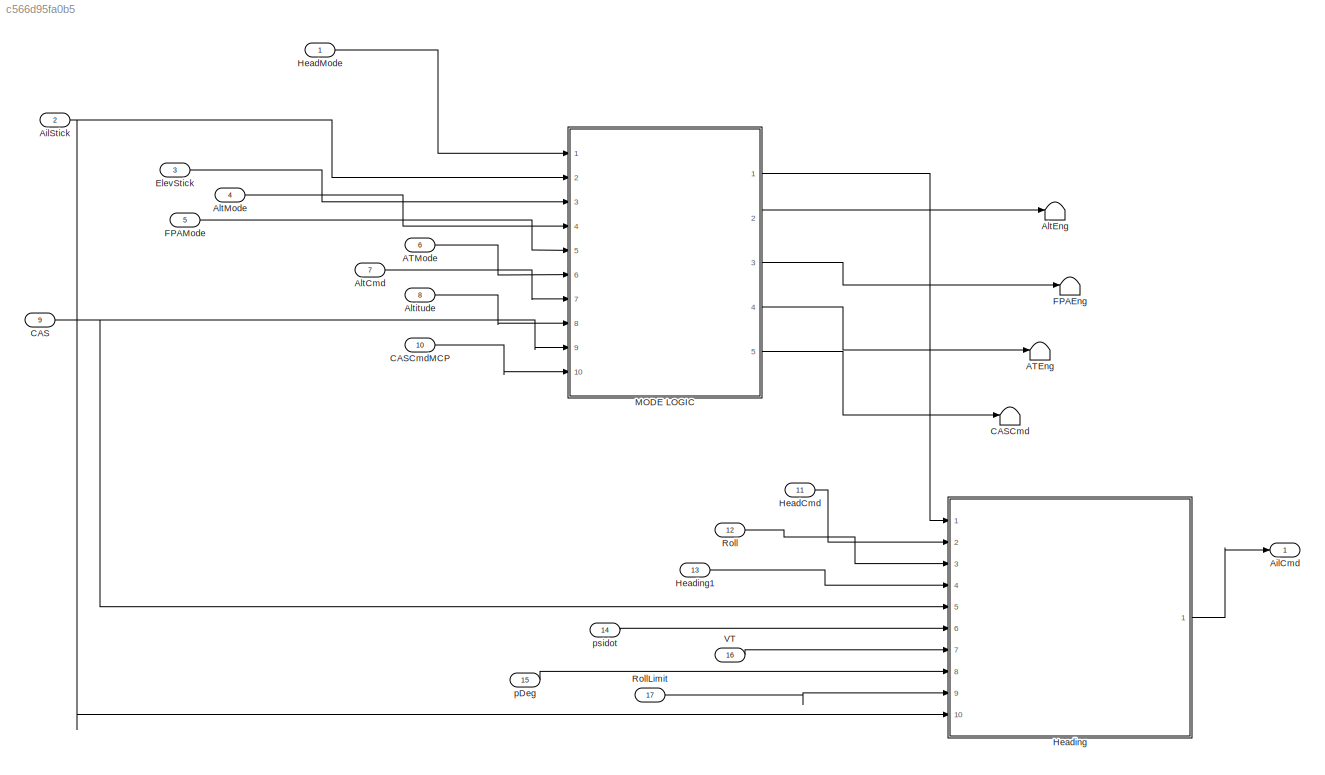
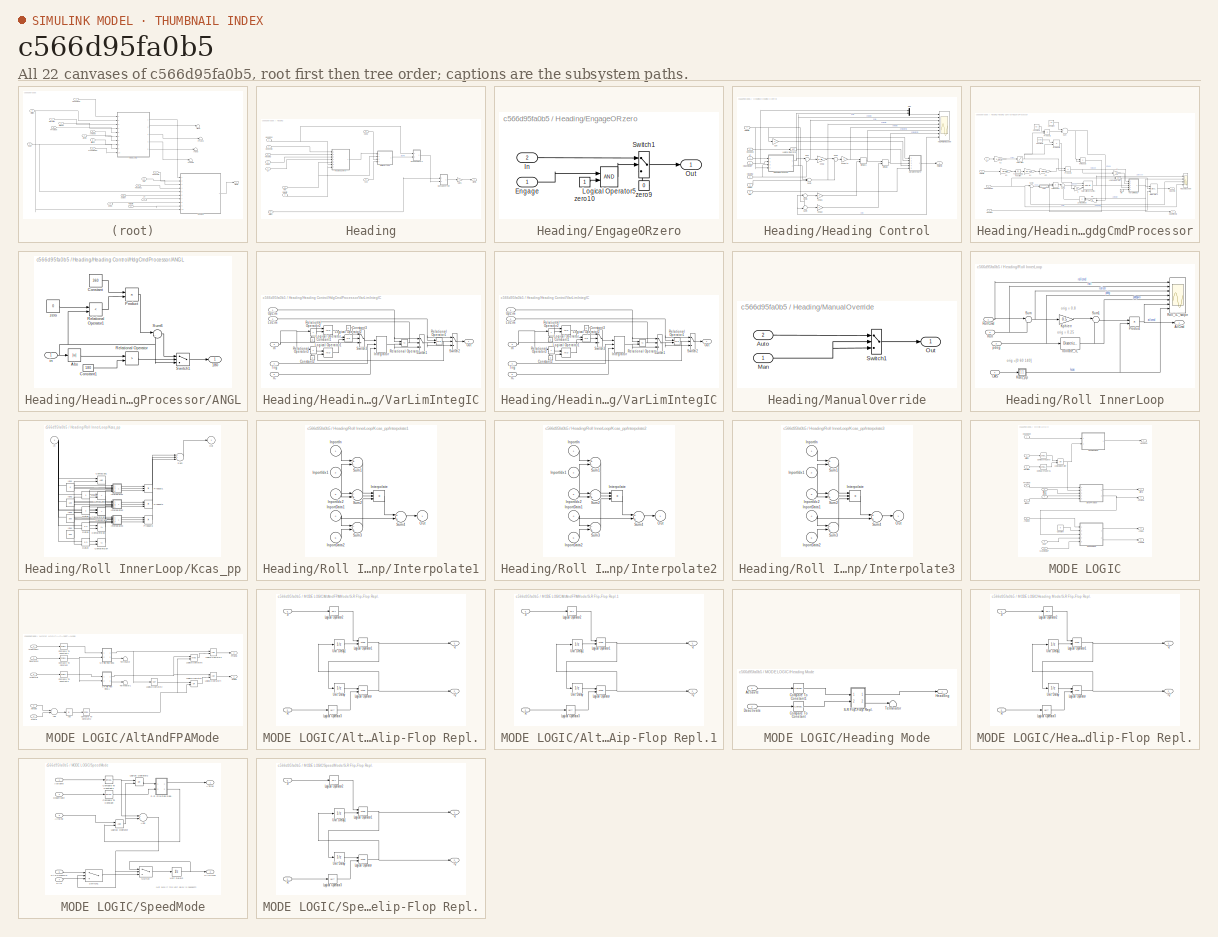
[diagram: thumbnail index - all 22 canvases of the model, root first then tree order]
MODEL slx_c566d95fa0b5
KIND model
CONFIG AbsTol = auto
CONFIG FixedStep = auto
CONFIG MaxStep = auto
CONFIG MinStep = auto
CONFIG RelTol = 1e-3
CONFIG SampleTimeConstraint = Unconstrained
CONFIG Solver = ode45
CONFIG SolverMode = Auto
CONFIG SolverName = ode45
CONFIG StartTime = 0.0
CONFIG StopTime = 10.0
BLOCK [Terminator] ATEng
BLOCK [Inport] ATMode
  IconDisplay = Port number
  Port = 6
BLOCK [Outport] AilCmd
  IconDisplay = Port number
BLOCK [Inport] AilStick
  IconDisplay = Port number
  Port = 2
BLOCK [Inport] AltCmd
  IconDisplay = Port number
  Port = 7
BLOCK [Terminator] AltEng
BLOCK [Inport] AltMode
  IconDisplay = Port number
  Port = 4
BLOCK [Inport] Altitude
  IconDisplay = Port number
  Port = 8
BLOCK [Inport] CAS
  IconDisplay = Port number
  Port = 9
BLOCK [Terminator] CASCmd
BLOCK [Inport] CASCmdMCP
  IconDisplay = Port number
  Port = 10
BLOCK [Inport] ElevStick
  IconDisplay = Port number
  Port = 3
BLOCK [Terminator] FPAEng
BLOCK [Inport] FPAMode
  IconDisplay = Port number
  Port = 5
BLOCK [Inport] HeadCmd
  IconDisplay = Port number
  Port = 11
BLOCK [Inport] HeadMode
  IconDisplay = Port number
BLOCK [SubSystem] Heading
  Ports = [10, 1]
  RequestExecContextInheritance = off
  TreatAsAtomicUnit = on
BLOCK [Outport] Heading/AilCmd
  IconDisplay = Port number
BLOCK [Inport] Heading/AilStick
  IconDisplay = Port number
  Port = 10
BLOCK [Inport] Heading/CAS
  IconDisplay = Port number
  Port = 5
BLOCK [SubSystem] Heading/EngageORzero
  Ports = [2, 1]
  RequestExecContextInheritance = off
BLOCK [Inport] Heading/EngageORzero/Engage
  IconDisplay = Port number
BLOCK [Inport] Heading/EngageORzero/In
  IconDisplay = Port number
  Port = 2
BLOCK [Logic] Heading/EngageORzero/Logical Operator5
  AllPortsSameDT = off
  OutDataTypeStr = boolean
  Ports = [2, 1]
BLOCK [Outport] Heading/EngageORzero/Out
  IconDisplay = Port number
BLOCK [Switch] Heading/EngageORzero/Switch1
  InputSameDT = off
  SaturateOnIntegerOverflow = off
  Threshold = 0.5
BLOCK [Constant] Heading/EngageORzero/zero10
BLOCK [Constant] Heading/EngageORzero/zero9
  Value = 0
BLOCK [Gain] Heading/Gain1
  Gain = -1
BLOCK [Inport] Heading/HeadCmd
  IconDisplay = Port number
  Port = 2
BLOCK [Inport] Heading/HeadEng
  IconDisplay = Port number
BLOCK [Inport] Heading/Heading
  IconDisplay = Port number
  Port = 4
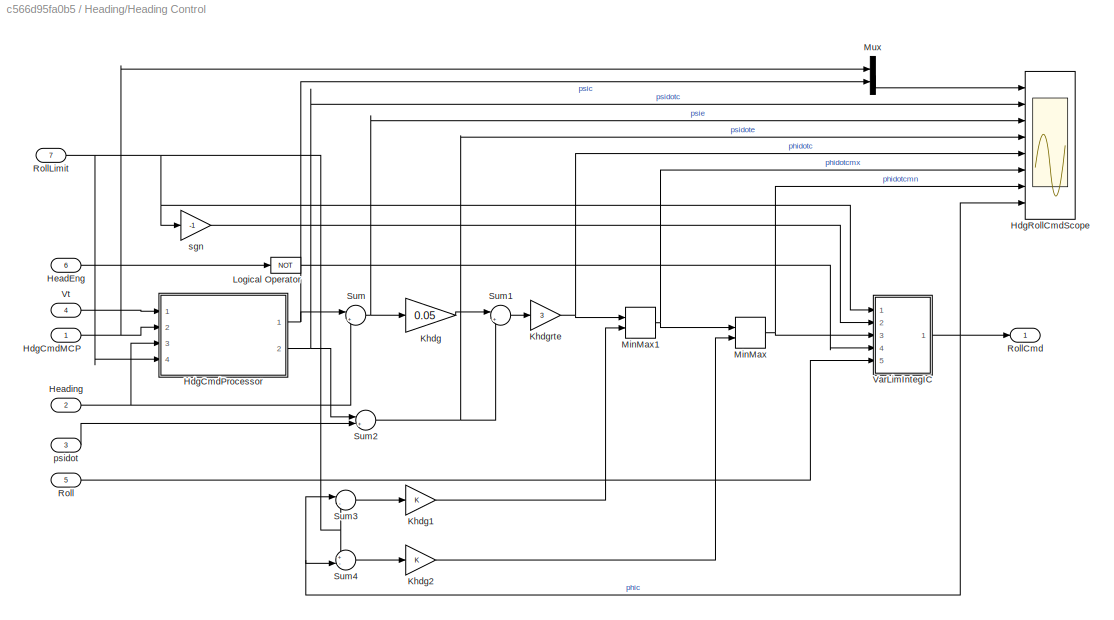
BLOCK [SubSystem] Heading/Heading Control
  Ports = [7, 1]
  RequestExecContextInheritance = off
  TreatAsAtomicUnit = on
BLOCK [Inport] Heading/Heading Control/HdgCmdMCP
  IconDisplay = Port number
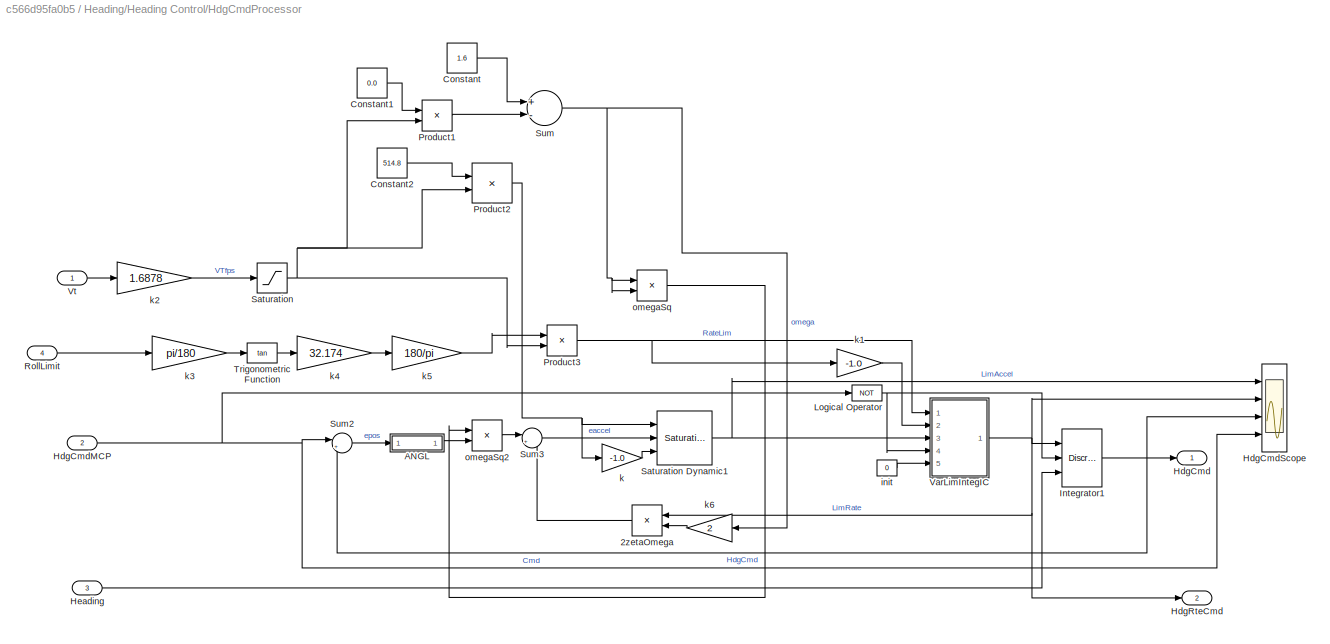
BLOCK [SubSystem] Heading/Heading Control/HdgCmdProcessor
  Ports = [4, 2]
  RequestExecContextInheritance = off
BLOCK [Product] Heading/Heading Control/HdgCmdProcessor/2zetaOmega
  InputSameDT = off
  OutDataTypeStr = Inherit: Inherit via internal rule
  Ports = [2, 1]
  SaturateOnIntegerOverflow = off
BLOCK [SubSystem] Heading/Heading Control/HdgCmdProcessor/ANGL
  Ports = [1, 1]
  RequestExecContextInheritance = off
BLOCK [Outport] Heading/Heading Control/HdgCmdProcessor/ANGL/180
  IconDisplay = Port number
BLOCK [Abs] Heading/Heading Control/HdgCmdProcessor/ANGL/Abs
  SaturateOnIntegerOverflow = off
BLOCK [Constant] Heading/Heading Control/HdgCmdProcessor/ANGL/Constant
  Value = 360
BLOCK [Constant] Heading/Heading Control/HdgCmdProcessor/ANGL/Constant1
  Value = 180
BLOCK [Product] Heading/Heading Control/HdgCmdProcessor/ANGL/Product
  InputSameDT = off
  OutDataTypeStr = Inherit: Inherit via internal rule
  Ports = [2, 1]
  SaturateOnIntegerOverflow = off
BLOCK [RelationalOperator] Heading/Heading Control/HdgCmdProcessor/ANGL/Relational Operator
  InputSameDT = off
  Operator = >
  Ports = [2, 1]
BLOCK [RelationalOperator] Heading/Heading Control/HdgCmdProcessor/ANGL/Relational Operator1
  InputSameDT = off
  Operator = <
  OutDataTypeStr = boolean
  Ports = [2, 1]
BLOCK [Sum] Heading/Heading Control/HdgCmdProcessor/ANGL/Sum6
  IconShape = round
  InputSameDT = off
  Inputs = |-+
  OutDataTypeStr = Inherit: Inherit via internal rule
  Ports = [2, 1]
BLOCK [Switch] Heading/Heading Control/HdgCmdProcessor/ANGL/Switch1
  InputSameDT = off
  Threshold = 0.1
BLOCK [Inport] Heading/Heading Control/HdgCmdProcessor/ANGL/in
  IconDisplay = Port number
BLOCK [Constant] Heading/Heading Control/HdgCmdProcessor/ANGL/zero
  Value = 0
BLOCK [Constant] Heading/Heading Control/HdgCmdProcessor/Constant
  Value = 1.6
BLOCK [Constant] Heading/Heading Control/HdgCmdProcessor/Constant1
  Value = 0.0
BLOCK [Constant] Heading/Heading Control/HdgCmdProcessor/Constant2
  Value = 514.8
BLOCK [Outport] Heading/Heading Control/HdgCmdProcessor/HdgCmd
  IconDisplay = Port number
BLOCK [Inport] Heading/Heading Control/HdgCmdProcessor/HdgCmdMCP
  IconDisplay = Port number
  Port = 2
BLOCK [Scope] Heading/Heading Control/HdgCmdProcessor/HdgCmdScope
  DataFormat = StructureWithTime
  Floating = off
  LimitDataPoints = off
  NumInputPorts = 4
  Ports = [4]
  SampleTime = 0
  SaveName = ScopeData6
  YMax = 2~4~40~40
  YMin = -2~-4~-40~-40
BLOCK [Outport] Heading/Heading Control/HdgCmdProcessor/HdgRteCmd
  IconDisplay = Port number
  Port = 2
BLOCK [Inport] Heading/Heading Control/HdgCmdProcessor/Heading
  IconDisplay = Port number
  Port = 3
BLOCK [DiscreteIntegrator] Heading/Heading Control/HdgCmdProcessor/Integrator1
  ExternalReset = level
  InitialConditionSource = external
  Ports = [3, 1]
  SampleTime = 1.0
BLOCK [Logic] Heading/Heading Control/HdgCmdProcessor/Logical Operator
  AllPortsSameDT = off
  Operator = NOT
  OutDataTypeStr = boolean
  Ports = [1, 1]
BLOCK [Product] Heading/Heading Control/HdgCmdProcessor/Product1
  InputSameDT = off
  OutDataTypeStr = Inherit: Inherit via internal rule
  Ports = [2, 1]
  SaturateOnIntegerOverflow = off
BLOCK [Product] Heading/Heading Control/HdgCmdProcessor/Product2
  InputSameDT = off
  Inputs = */
  OutDataTypeStr = Inherit: Inherit via internal rule
  Ports = [2, 1]
  SaturateOnIntegerOverflow = off
BLOCK [Product] Heading/Heading Control/HdgCmdProcessor/Product3
  InputSameDT = off
  Inputs = /*
  OutDataTypeStr = Inherit: Inherit via internal rule
  Ports = [2, 1]
  SaturateOnIntegerOverflow = off
BLOCK [Inport] Heading/Heading Control/HdgCmdProcessor/RollLimit
  IconDisplay = Port number
  Port = 4
BLOCK [Saturate] Heading/Heading Control/HdgCmdProcessor/Saturation
  InputPortMap = u0
  LowerLimit = 0.0001
  Ports = [1, 1]
  UpperLimit = 1000
BLOCK [Reference] Heading/Heading Control/HdgCmdProcessor/Saturation Dynamic1  REF=simulink/Discontinuities/Saturation
Dynamic
  DoSatur = off
  LockScale = off
  OutDataType = fixdt(1, 16)
  OutDataTypeStr = Inherit: Same as second input
  OutMax = []
  OutMin = []
  OutScaling = 2^-10
  OutputDataTypeScalingMode = Same as second input
  Ports = [3, 1]
  RndMeth = Floor
  SourceBlock = simulink/Discontinuities/Saturation\nDynamic
  SourceType = Saturation Dynamic
BLOCK [Sum] Heading/Heading Control/HdgCmdProcessor/Sum
  InputSameDT = off
  Inputs = +-
  OutDataTypeStr = Inherit: Inherit via internal rule
  Ports = [2, 1]
  SaturateOnIntegerOverflow = off
BLOCK [Sum] Heading/Heading Control/HdgCmdProcessor/Sum2
  IconShape = round
  InputSameDT = off
  Inputs = |+-
  OutDataTypeStr = Inherit: Inherit via internal rule
  Ports = [2, 1]
  SaturateOnIntegerOverflow = off
BLOCK [Sum] Heading/Heading Control/HdgCmdProcessor/Sum3
  IconShape = round
  InputSameDT = off
  Inputs = |+-
  OutDataTypeStr = Inherit: Inherit via internal rule
  Ports = [2, 1]
  SaturateOnIntegerOverflow = off
BLOCK [Trigonometry] Heading/Heading Control/HdgCmdProcessor/Trigonometric Function
  Operator = tan
  Ports = [1, 1]
BLOCK [SubSystem] Heading/Heading Control/HdgCmdProcessor/VarLimIntegIC
  Ports = [5, 1]
  RequestExecContextInheritance = off
BLOCK [Constant] Heading/Heading Control/HdgCmdProcessor/VarLimIntegIC/Constant1
  Value = 0
BLOCK [Constant] Heading/Heading Control/HdgCmdProcessor/VarLimIntegIC/Constant2
  Value = 0
BLOCK [Constant] Heading/Heading Control/HdgCmdProcessor/VarLimIntegIC/Constant3
  Value = 0
BLOCK [Inport] Heading/Heading Control/HdgCmdProcessor/VarLimIntegIC/IC
  IconDisplay = Port number
  Port = 5
BLOCK [Inport] Heading/Heading Control/HdgCmdProcessor/VarLimIntegIC/In
  IconDisplay = Port number
  Port = 3
BLOCK [DiscreteIntegrator] Heading/Heading Control/HdgCmdProcessor/VarLimIntegIC/Integrator
  ExternalReset = level
  InitialConditionSource = external
  Ports = [3, 1]
  SampleTime = 1.0
BLOCK [Inport] Heading/Heading Control/HdgCmdProcessor/VarLimIntegIC/LoLim
  IconDisplay = Port number
  Port = 2
BLOCK [Logic] Heading/Heading Control/HdgCmdProcessor/VarLimIntegIC/Logical Operator
  AllPortsSameDT = off
  Ports = [2, 1]
BLOCK [Logic] Heading/Heading Control/HdgCmdProcessor/VarLimIntegIC/Logical Operator1
  AllPortsSameDT = off
  Ports = [2, 1]
BLOCK [Logic] Heading/Heading Control/HdgCmdProcessor/VarLimIntegIC/Logical Operator2
  AllPortsSameDT = off
  Operator = OR
  Ports = [2, 1]
BLOCK [Outport] Heading/Heading Control/HdgCmdProcessor/VarLimIntegIC/Out
  IconDisplay = Port number
BLOCK [RelationalOperator] Heading/Heading Control/HdgCmdProcessor/VarLimIntegIC/Relational Operator
  InputSameDT = off
  Operator = <=
  Ports = [2, 1]
BLOCK [RelationalOperator] Heading/Heading Control/HdgCmdProcessor/VarLimIntegIC/Relational Operator1
  InputSameDT = off
  Ports = [2, 1]
BLOCK [RelationalOperator] Heading/Heading Control/HdgCmdProcessor/VarLimIntegIC/Relational Operator2
  InputSameDT = off
  Operator = >
  Ports = [2, 1]
BLOCK [RelationalOperator] Heading/Heading Control/HdgCmdProcessor/VarLimIntegIC/Relational Operator3
  InputSameDT = off
  Operator = <
  Ports = [2, 1]
BLOCK [Switch] Heading/Heading Control/HdgCmdProcessor/VarLimIntegIC/Switch1
  Threshold = 0.5
BLOCK [Switch] Heading/Heading Control/HdgCmdProcessor/VarLimIntegIC/Switch2
  Threshold = 0.5
BLOCK [Switch] Heading/Heading Control/HdgCmdProcessor/VarLimIntegIC/Switch3
  Threshold = 0.5
BLOCK [Inport] Heading/Heading Control/HdgCmdProcessor/VarLimIntegIC/Trig
  IconDisplay = Port number
  Port = 4
BLOCK [Inport] Heading/Heading Control/HdgCmdProcessor/VarLimIntegIC/UpLim
  IconDisplay = Port number
BLOCK [Inport] Heading/Heading Control/HdgCmdProcessor/Vt
  IconDisplay = Port number
BLOCK [Constant] Heading/Heading Control/HdgCmdProcessor/init
  Value = 0
BLOCK [Gain] Heading/Heading Control/HdgCmdProcessor/k
  Gain = -1.0
  OutDataTypeStr = Inherit: Inherit via internal rule
  ParamDataTypeStr = Inherit: Inherit via internal rule
  SaturateOnIntegerOverflow = off
BLOCK [Gain] Heading/Heading Control/HdgCmdProcessor/k1
  Gain = -1.0
  OutDataTypeStr = Inherit: Inherit via internal rule
  ParamDataTypeStr = Inherit: Inherit via internal rule
  SaturateOnIntegerOverflow = off
BLOCK [Gain] Heading/Heading Control/HdgCmdProcessor/k2
  Gain = 1.6878
  OutDataTypeStr = Inherit: Inherit via internal rule
  ParamDataTypeStr = Inherit: Inherit via internal rule
  SaturateOnIntegerOverflow = off
BLOCK [Gain] Heading/Heading Control/HdgCmdProcessor/k3
  Gain = pi/180
  OutDataTypeStr = Inherit: Inherit via internal rule
  ParamDataTypeStr = Inherit: Inherit via internal rule
  SaturateOnIntegerOverflow = off
BLOCK [Gain] Heading/Heading Control/HdgCmdProcessor/k4
  Gain = 32.174
  OutDataTypeStr = Inherit: Inherit via internal rule
  ParamDataTypeStr = Inherit: Inherit via internal rule
  SaturateOnIntegerOverflow = off
BLOCK [Gain] Heading/Heading Control/HdgCmdProcessor/k5
  Gain = 180/pi
  OutDataTypeStr = Inherit: Inherit via internal rule
  ParamDataTypeStr = Inherit: Inherit via internal rule
  SaturateOnIntegerOverflow = off
BLOCK [Gain] Heading/Heading Control/HdgCmdProcessor/k6
  Gain = 2
  OutDataTypeStr = Inherit: Inherit via internal rule
  ParamDataTypeStr = Inherit: Inherit via internal rule
  SaturateOnIntegerOverflow = off
BLOCK [Product] Heading/Heading Control/HdgCmdProcessor/omegaSq
  InputSameDT = off
  OutDataTypeStr = Inherit: Inherit via internal rule
  Ports = [2, 1]
  SaturateOnIntegerOverflow = off
BLOCK [Product] Heading/Heading Control/HdgCmdProcessor/omegaSq2
  InputSameDT = off
  OutDataTypeStr = Inherit: Inherit via internal rule
  Ports = [2, 1]
  SaturateOnIntegerOverflow = off
BLOCK [Scope] Heading/Heading Control/HdgRollCmdScope
  DataFormat = StructureWithTime
  Floating = off
  LimitDataPoints = off
  NumInputPorts = 8
  Ports = [8]
  SampleTime = 0
  SaveName = ScopeData7
  YMax = 30~30~10~10~4~10~1~5
  YMin = -30~-30~-10~-10~-4~-10~0~-5
BLOCK [Inport] Heading/Heading Control/HeadEng
  IconDisplay = Port number
  Port = 6
BLOCK [Inport] Heading/Heading Control/Heading
  IconDisplay = Port number
  Port = 2
BLOCK [Gain] Heading/Heading Control/Khdg
  Gain = 0.05
  OutDataTypeStr = Inherit: Inherit via internal rule
  ParamDataTypeStr = Inherit: Inherit via internal rule
  SaturateOnIntegerOverflow = off
BLOCK [Gain] Heading/Heading Control/Khdg1
  OutDataTypeStr = Inherit: Inherit via internal rule
  ParamDataTypeStr = Inherit: Inherit via internal rule
  SaturateOnIntegerOverflow = off
BLOCK [Gain] Heading/Heading Control/Khdg2
  OutDataTypeStr = Inherit: Inherit via internal rule
  ParamDataTypeStr = Inherit: Inherit via internal rule
  SaturateOnIntegerOverflow = off
BLOCK [Gain] Heading/Heading Control/Khdgrte
  Gain = 3
  OutDataTypeStr = Inherit: Inherit via internal rule
  ParamDataTypeStr = Inherit: Inherit via internal rule
  SaturateOnIntegerOverflow = off
BLOCK [Logic] Heading/Heading Control/Logical Operator
  AllPortsSameDT = off
  Operator = NOT
  OutDataTypeStr = boolean
  Ports = [1, 1]
BLOCK [MinMax] Heading/Heading Control/MinMax
  InputSameDT = off
  Inputs = 2
  Ports = [2, 1]
  SaturateOnIntegerOverflow = off
BLOCK [MinMax] Heading/Heading Control/MinMax1
  Function = max
  InputSameDT = off
  Inputs = 2
  Ports = [2, 1]
  SaturateOnIntegerOverflow = off
BLOCK [Mux] Heading/Heading Control/Mux
  DisplayOption = bar
  Inputs = 2
  Ports = [2, 1]
BLOCK [Inport] Heading/Heading Control/Roll
  IconDisplay = Port number
  Port = 5
BLOCK [Outport] Heading/Heading Control/RollCmd
  IconDisplay = Port number
BLOCK [Inport] Heading/Heading Control/RollLimit
  IconDisplay = Port number
  Port = 7
BLOCK [Sum] Heading/Heading Control/Sum
  IconShape = round
  InputSameDT = off
  Inputs = |+-
  OutDataTypeStr = Inherit: Inherit via internal rule
  Ports = [2, 1]
  SaturateOnIntegerOverflow = off
BLOCK [Sum] Heading/Heading Control/Sum1
  IconShape = round
  InputSameDT = off
  Inputs = |++
  OutDataTypeStr = Inherit: Inherit via internal rule
  Ports = [2, 1]
  SaturateOnIntegerOverflow = off
BLOCK [Sum] Heading/Heading Control/Sum2
  IconShape = round
  InputSameDT = off
  Inputs = |+-
  OutDataTypeStr = Inherit: Inherit via internal rule
  Ports = [2, 1]
  SaturateOnIntegerOverflow = off
BLOCK [Sum] Heading/Heading Control/Sum3
  IconShape = round
  InputSameDT = off
  Inputs = |--
  OutDataTypeStr = Inherit: Inherit via internal rule
  Ports = [2, 1]
  SaturateOnIntegerOverflow = off
BLOCK [Sum] Heading/Heading Control/Sum4
  IconShape = round
  InputSameDT = off
  Inputs = +-|
  OutDataTypeStr = Inherit: Inherit via internal rule
  Ports = [2, 1]
  SaturateOnIntegerOverflow = off
BLOCK [SubSystem] Heading/Heading Control/VarLimIntegIC
  Ports = [5, 1]
  RequestExecContextInheritance = off
BLOCK [Constant] Heading/Heading Control/VarLimIntegIC/Constant1
  Value = 0
BLOCK [Constant] Heading/Heading Control/VarLimIntegIC/Constant2
  Value = 0
BLOCK [Constant] Heading/Heading Control/VarLimIntegIC/Constant3
  Value = 0
BLOCK [Inport] Heading/Heading Control/VarLimIntegIC/IC
  IconDisplay = Port number
  Port = 5
BLOCK [Inport] Heading/Heading Control/VarLimIntegIC/In
  IconDisplay = Port number
  Port = 3
BLOCK [DiscreteIntegrator] Heading/Heading Control/VarLimIntegIC/Integrator
  ExternalReset = level
  InitialConditionSource = external
  Ports = [3, 1]
  SampleTime = 1.0
BLOCK [Inport] Heading/Heading Control/VarLimIntegIC/LoLim
  IconDisplay = Port number
  Port = 2
BLOCK [Logic] Heading/Heading Control/VarLimIntegIC/Logical Operator
  AllPortsSameDT = off
  Ports = [2, 1]
BLOCK [Logic] Heading/Heading Control/VarLimIntegIC/Logical Operator1
  AllPortsSameDT = off
  Ports = [2, 1]
BLOCK [Logic] Heading/Heading Control/VarLimIntegIC/Logical Operator2
  AllPortsSameDT = off
  Operator = OR
  Ports = [2, 1]
BLOCK [Outport] Heading/Heading Control/VarLimIntegIC/Out
  IconDisplay = Port number
BLOCK [RelationalOperator] Heading/Heading Control/VarLimIntegIC/Relational Operator
  InputSameDT = off
  Operator = <=
  Ports = [2, 1]
BLOCK [RelationalOperator] Heading/Heading Control/VarLimIntegIC/Relational Operator1
  InputSameDT = off
  Ports = [2, 1]
BLOCK [RelationalOperator] Heading/Heading Control/VarLimIntegIC/Relational Operator2
  InputSameDT = off
  Operator = >
  Ports = [2, 1]
BLOCK [RelationalOperator] Heading/Heading Control/VarLimIntegIC/Relational Operator3
  InputSameDT = off
  Operator = <
  Ports = [2, 1]
BLOCK [Switch] Heading/Heading Control/VarLimIntegIC/Switch1
  Threshold = 0.5
BLOCK [Switch] Heading/Heading Control/VarLimIntegIC/Switch2
  Threshold = 0.5
BLOCK [Switch] Heading/Heading Control/VarLimIntegIC/Switch3
  Threshold = 0.5
BLOCK [Inport] Heading/Heading Control/VarLimIntegIC/Trig
  IconDisplay = Port number
  Port = 4
BLOCK [Inport] Heading/Heading Control/VarLimIntegIC/UpLim
  IconDisplay = Port number
BLOCK [Inport] Heading/Heading Control/Vt
  IconDisplay = Port number
  Port = 4
BLOCK [Inport] Heading/Heading Control/psidot
  IconDisplay = Port number
  Port = 3
BLOCK [Gain] Heading/Heading Control/sgn
  Gain = -1
  OutDataTypeStr = Inherit: Inherit via internal rule
  ParamDataTypeStr = Inherit: Inherit via internal rule
  SaturateOnIntegerOverflow = off
BLOCK [SubSystem] Heading/ManualOverride
  Ports = [2, 1]
  RequestExecContextInheritance = off
BLOCK [Inport] Heading/ManualOverride/Auto
  IconDisplay = Port number
  Port = 2
BLOCK [Inport] Heading/ManualOverride/Man
  IconDisplay = Port number
BLOCK [Outport] Heading/ManualOverride/Out
  IconDisplay = Port number
BLOCK [Switch] Heading/ManualOverride/Switch1
  Criteria = u2 ~= 0
  InputSameDT = off
  SaturateOnIntegerOverflow = off
  Threshold = 0.5
BLOCK [Inport] Heading/Roll
  IconDisplay = Port number
  Port = 3
BLOCK [SubSystem] Heading/Roll InnerLoop
  Ports = [4, 1]
  RequestExecContextInheritance = off
  TreatAsAtomicUnit = on
BLOCK [Outport] Heading/Roll InnerLoop/AilCmd
  IconDisplay = Port number
BLOCK [Inport] Heading/Roll InnerLoop/CAS
  IconDisplay = Port number
  Port = 4
BLOCK [SubSystem] Heading/Roll InnerLoop/Kcas_pp
  Ports = [1, 1]
  RequestExecContextInheritance = off
  TreatAsAtomicUnit = on
BLOCK [RelationalOperator] Heading/Roll InnerLoop/Kcas_pp/CompInfEq2
  Operator = <=
  Ports = [2, 1]
BLOCK [RelationalOperator] Heading/Roll InnerLoop/Kcas_pp/CompInfEq3
  Operator = <=
  Ports = [2, 1]
BLOCK [RelationalOperator] Heading/Roll InnerLoop/Kcas_pp/CompInfEq4
  Operator = <=
  Ports = [2, 1]
BLOCK [RelationalOperator] Heading/Roll InnerLoop/Kcas_pp/CompSup1
  Ports = [2, 1]
BLOCK [RelationalOperator] Heading/Roll InnerLoop/Kcas_pp/CompSup2
  Operator = >
  Ports = [2, 1]
BLOCK [RelationalOperator] Heading/Roll InnerLoop/Kcas_pp/CompSup3
  Operator = >
  Ports = [2, 1]
BLOCK [Constant] Heading/Roll InnerLoop/Kcas_pp/Data1
BLOCK [Constant] Heading/Roll InnerLoop/Kcas_pp/Data2
BLOCK [Constant] Heading/Roll InnerLoop/Kcas_pp/Data3
  Value = 0.3
BLOCK [Constant] Heading/Roll InnerLoop/Kcas_pp/Data4
  Value = 0.3
BLOCK [Constant] Heading/Roll InnerLoop/Kcas_pp/Idx1
  Value = 0
BLOCK [Constant] Heading/Roll InnerLoop/Kcas_pp/Idx2
  Value = 120
BLOCK [Constant] Heading/Roll InnerLoop/Kcas_pp/Idx3
  Value = 350
BLOCK [Constant] Heading/Roll InnerLoop/Kcas_pp/Idx4
  Value = 500
BLOCK [Inport] Heading/Roll InnerLoop/Kcas_pp/In
  IconDisplay = Port number
BLOCK [SubSystem] Heading/Roll InnerLoop/Kcas_pp/Interpolate1
  Ports = [5, 1]
  RequestExecContextInheritance = off
BLOCK [Inport] Heading/Roll InnerLoop/Kcas_pp/Interpolate1/InportData1
  IconDisplay = Port number
  Port = 4
BLOCK [Inport] Heading/Roll InnerLoop/Kcas_pp/Interpolate1/InportData2
  IconDisplay = Port number
  Port = 5
BLOCK [Inport] Heading/Roll InnerLoop/Kcas_pp/Interpolate1/InportIdx1
  IconDisplay = Port number
  Port = 2
BLOCK [Inport] Heading/Roll InnerLoop/Kcas_pp/Interpolate1/InportIdx2
  IconDisplay = Port number
  Port = 3
BLOCK [Inport] Heading/Roll InnerLoop/Kcas_pp/Interpolate1/InportIn
  IconDisplay = Port number
BLOCK [Product] Heading/Roll InnerLoop/Kcas_pp/Interpolate1/Interpolate
  Inputs = */*
  Ports = [3, 1]
BLOCK [Outport] Heading/Roll InnerLoop/Kcas_pp/Interpolate1/Out
  IconDisplay = Port number
BLOCK [Sum] Heading/Roll InnerLoop/Kcas_pp/Interpolate1/Sum1
  Inputs = +-
  Ports = [2, 1]
BLOCK [Sum] Heading/Roll InnerLoop/Kcas_pp/Interpolate1/Sum2
  Inputs = -+
  Ports = [2, 1]
BLOCK [Sum] Heading/Roll InnerLoop/Kcas_pp/Interpolate1/Sum3
  Inputs = -+
  Ports = [2, 1]
BLOCK [Sum] Heading/Roll InnerLoop/Kcas_pp/Interpolate1/Sum4
  Ports = [2, 1]
BLOCK [SubSystem] Heading/Roll InnerLoop/Kcas_pp/Interpolate2
  Ports = [5, 1]
  RequestExecContextInheritance = off
BLOCK [Inport] Heading/Roll InnerLoop/Kcas_pp/Interpolate2/InportData1
  IconDisplay = Port number
  Port = 4
BLOCK [Inport] Heading/Roll InnerLoop/Kcas_pp/Interpolate2/InportData2
  IconDisplay = Port number
  Port = 5
BLOCK [Inport] Heading/Roll InnerLoop/Kcas_pp/Interpolate2/InportIdx1
  IconDisplay = Port number
  Port = 2
BLOCK [Inport] Heading/Roll InnerLoop/Kcas_pp/Interpolate2/InportIdx2
  IconDisplay = Port number
  Port = 3
BLOCK [Inport] Heading/Roll InnerLoop/Kcas_pp/Interpolate2/InportIn
  IconDisplay = Port number
BLOCK [Product] Heading/Roll InnerLoop/Kcas_pp/Interpolate2/Interpolate
  Inputs = */*
  Ports = [3, 1]
BLOCK [Outport] Heading/Roll InnerLoop/Kcas_pp/Interpolate2/Out
  IconDisplay = Port number
BLOCK [Sum] Heading/Roll InnerLoop/Kcas_pp/Interpolate2/Sum1
  Inputs = +-
  Ports = [2, 1]
BLOCK [Sum] Heading/Roll InnerLoop/Kcas_pp/Interpolate2/Sum2
  Inputs = -+
  Ports = [2, 1]
BLOCK [Sum] Heading/Roll InnerLoop/Kcas_pp/Interpolate2/Sum3
  Inputs = -+
  Ports = [2, 1]
BLOCK [Sum] Heading/Roll InnerLoop/Kcas_pp/Interpolate2/Sum4
  Ports = [2, 1]
BLOCK [SubSystem] Heading/Roll InnerLoop/Kcas_pp/Interpolate3
  Ports = [5, 1]
  RequestExecContextInheritance = off
BLOCK [Inport] Heading/Roll InnerLoop/Kcas_pp/Interpolate3/InportData1
  IconDisplay = Port number
  Port = 4
BLOCK [Inport] Heading/Roll InnerLoop/Kcas_pp/Interpolate3/InportData2
  IconDisplay = Port number
  Port = 5
BLOCK [Inport] Heading/Roll InnerLoop/Kcas_pp/Interpolate3/InportIdx1
  IconDisplay = Port number
  Port = 2
BLOCK [Inport] Heading/Roll InnerLoop/Kcas_pp/Interpolate3/InportIdx2
  IconDisplay = Port number
  Port = 3
BLOCK [Inport] Heading/Roll InnerLoop/Kcas_pp/Interpolate3/InportIn
  IconDisplay = Port number
BLOCK [Product] Heading/Roll InnerLoop/Kcas_pp/Interpolate3/Interpolate
  Inputs = */*
  Ports = [3, 1]
BLOCK [Outport] Heading/Roll InnerLoop/Kcas_pp/Interpolate3/Out
  IconDisplay = Port number
BLOCK [Sum] Heading/Roll InnerLoop/Kcas_pp/Interpolate3/Sum1
  Inputs = +-
  Ports = [2, 1]
BLOCK [Sum] Heading/Roll InnerLoop/Kcas_pp/Interpolate3/Sum2
  Inputs = -+
  Ports = [2, 1]
BLOCK [Sum] Heading/Roll InnerLoop/Kcas_pp/Interpolate3/Sum3
  Inputs = -+
  Ports = [2, 1]
BLOCK [Sum] Heading/Roll InnerLoop/Kcas_pp/Interpolate3/Sum4
  Ports = [2, 1]
BLOCK [Outport] Heading/Roll InnerLoop/Kcas_pp/Out
  IconDisplay = Port number
BLOCK [Product] Heading/Roll InnerLoop/Kcas_pp/Product1
  InputSameDT = off
  Inputs = ***
  Ports = [3, 1]
BLOCK [Product] Heading/Roll InnerLoop/Kcas_pp/Product2
  InputSameDT = off
  Inputs = ***
  Ports = [3, 1]
BLOCK [Product] Heading/Roll InnerLoop/Kcas_pp/Product3
  InputSameDT = off
  Inputs = ***
  Ports = [3, 1]
BLOCK [Sum] Heading/Roll InnerLoop/Kcas_pp/Sum
  Inputs = +++
  Ports = [3, 1]
BLOCK [Gain] Heading/Roll InnerLoop/Kphierr
  Gain = 0.5
  OutDataTypeStr = Inherit: Inherit via internal rule
  ParamDataTypeStr = Inherit: Inherit via internal rule
  SaturateOnIntegerOverflow = off
BLOCK [Product] Heading/Roll InnerLoop/Product
  InputSameDT = off
  OutDataTypeStr = Inherit: Inherit via internal rule
  Ports = [2, 1]
  SaturateOnIntegerOverflow = off
BLOCK [Inport] Heading/Roll InnerLoop/Roll
  IconDisplay = Port number
  Port = 2
BLOCK [Inport] Heading/Roll InnerLoop/RollCmd
  IconDisplay = Port number
BLOCK [Scope] Heading/Roll InnerLoop/Roll_IL_scope
  DataFormat = StructureWithTime
  Floating = off
  LimitDataPoints = off
  NumInputPorts = 7
  Ports = [7]
  SampleTime = 0
  SaveName = ScopeData5
  YMax = 30~30~10~10~4~10~1
  YMin = -30~-30~-10~-10~-4~-10~0
BLOCK [Sum] Heading/Roll InnerLoop/Sum
  IconShape = round
  InputSameDT = off
  Inputs = |+-
  OutDataTypeStr = Inherit: Inherit via internal rule
  Ports = [2, 1]
  SaturateOnIntegerOverflow = off
BLOCK [Sum] Heading/Roll InnerLoop/Sum1
  IconShape = round
  InputSameDT = off
  Inputs = |+-
  OutDataTypeStr = Inherit: Inherit via internal rule
  Ports = [2, 1]
  SaturateOnIntegerOverflow = off
BLOCK [Inport] Heading/Roll InnerLoop/pdeg
  IconDisplay = Port number
  Port = 3
BLOCK [Reference] Heading/Roll InnerLoop/rollrate_IL  REF=discretizing/Discretized  (lib defined in mdl_5048aa1cd587)
Zero-Pole
  AbsTol = auto
  Gain = 0.00645
  Poles = -0.5
  Ports = [1, 1]
  SampleTime = 1.0
  SourceBlock = discretizing/Discretized\nZero-Pole
  SourceType = DiscretizedZeroPole
  Wc = 1
  Zeros = 0
  method = zoh
BLOCK [Inport] Heading/RollLimit
  IconDisplay = Port number
  Port = 9
BLOCK [Inport] Heading/Vt
  IconDisplay = Port number
  Port = 7
BLOCK [Inport] Heading/pDeg
  IconDisplay = Port number
  Port = 8
BLOCK [Inport] Heading/psidot
  IconDisplay = Port number
  Port = 6
BLOCK [Inport] Heading1
  IconDisplay = Port number
  Port = 13
BLOCK [SubSystem] MODE LOGIC
  Ports = [10, 5]
  RequestExecContextInheritance = off
  TreatAsAtomicUnit = on
BLOCK [Outport] MODE LOGIC/ATEng
  IconDisplay = Port number
  Port = 4
BLOCK [Inport] MODE LOGIC/ATMode
  IconDisplay = Port number
  Port = 6
BLOCK [Inport] MODE LOGIC/AilStick
  IconDisplay = Port number
  Port = 2
BLOCK [SubSystem] MODE LOGIC/AltAndFPAMode
  Ports = [5, 2]
  RequestExecContextInheritance = off
  TreatAsAtomicUnit = on
BLOCK [Abs] MODE LOGIC/AltAndFPAMode/Abs
  SaturateOnIntegerOverflow = off
BLOCK [Inport] MODE LOGIC/AltAndFPAMode/ActiavteAlt
  IconDisplay = Port number
  Port = 5
BLOCK [Inport] MODE LOGIC/AltAndFPAMode/ActiavteFPA
  IconDisplay = Port number
BLOCK [Sum] MODE LOGIC/AltAndFPAMode/Add
  InputSameDT = off
  Inputs = +-
  OutDataTypeStr = Inherit: Inherit via internal rule
  Ports = [2, 1]
  SaturateOnIntegerOverflow = off
BLOCK [Inport] MODE LOGIC/AltAndFPAMode/AltCmd
  IconDisplay = Port number
  Port = 4
BLOCK [Outport] MODE LOGIC/AltAndFPAMode/AltEng
  IconDisplay = Port number
BLOCK [Inport] MODE LOGIC/AltAndFPAMode/Altitude
  IconDisplay = Port number
  Port = 3
BLOCK [Reference] MODE LOGIC/AltAndFPAMode/Compare To Constant  REF=simulink/Logic and Bit
Operations/Compare
To Constant
  OutDataTypeStr = boolean
  Ports = [1, 1]
  SourceBlock = simulink/Logic and Bit\nOperations/Compare\nTo Constant
  SourceType = Compare To Constant
  ZeroCross = on
  const = 0.0
  relop = ~=
BLOCK [Reference] MODE LOGIC/AltAndFPAMode/Compare To Constant1  REF=simulink/Logic and Bit
Operations/Compare
To Constant
  OutDataTypeStr = boolean
  Ports = [1, 1]
  SourceBlock = simulink/Logic and Bit\nOperations/Compare\nTo Constant
  SourceType = Compare To Constant
  ZeroCross = on
  const = 0.0
  relop = ~=
BLOCK [Reference] MODE LOGIC/AltAndFPAMode/Compare To Constant2  REF=simulink/Logic and Bit
Operations/Compare
To Constant
  OutDataTypeStr = boolean
  Ports = [1, 1]
  SourceBlock = simulink/Logic and Bit\nOperations/Compare\nTo Constant
  SourceType = Compare To Constant
  ZeroCross = on
  const = 200.0
  relop = <=
BLOCK [Reference] MODE LOGIC/AltAndFPAMode/Compare To Constant3  REF=simulink/Logic and Bit
Operations/Compare
To Constant
  OutDataTypeStr = boolean
  Ports = [1, 1]
  SourceBlock = simulink/Logic and Bit\nOperations/Compare\nTo Constant
  SourceType = Compare To Constant
  ZeroCross = on
  const = 0.0
  relop = ~=
BLOCK [Inport] MODE LOGIC/AltAndFPAMode/Deactivate
  IconDisplay = Port number
  Port = 2
BLOCK [Outport] MODE LOGIC/AltAndFPAMode/FPAEng
  IconDisplay = Port number
  Port = 2
BLOCK [Logic] MODE LOGIC/AltAndFPAMode/Logical Operator1
  AllPortsSameDT = off
  Operator = OR
  OutDataTypeStr = boolean
  Ports = [2, 1]
BLOCK [Logic] MODE LOGIC/AltAndFPAMode/Logical Operator2
  AllPortsSameDT = off
  Operator = NOT
  OutDataTypeStr = boolean
  Ports = [1, 1]
BLOCK [Logic] MODE LOGIC/AltAndFPAMode/Logical Operator3
  AllPortsSameDT = off
  OutDataTypeStr = boolean
  Ports = [2, 1]
BLOCK [Logic] MODE LOGIC/AltAndFPAMode/Logical Operator4
  AllPortsSameDT = off
  OutDataTypeStr = boolean
  Ports = [2, 1]
BLOCK [Logic] MODE LOGIC/AltAndFPAMode/Logical Operator6
  AllPortsSameDT = off
  Operator = NAND
  OutDataTypeStr = boolean
  Ports = [2, 1]
BLOCK [SubSystem] MODE LOGIC/AltAndFPAMode/S-R Flip-Flop Repl.
  Ports = [2, 2]
  RequestExecContextInheritance = off
BLOCK [Outport] MODE LOGIC/AltAndFPAMode/S-R Flip-Flop Repl./!Q
  IconDisplay = Port number
  Port = 2
BLOCK [Logic] MODE LOGIC/AltAndFPAMode/S-R Flip-Flop Repl./Logical Operator
  AllPortsSameDT = off
  Operator = NAND
  OutDataTypeStr = boolean
  Ports = [2, 1]
BLOCK [Logic] MODE LOGIC/AltAndFPAMode/S-R Flip-Flop Repl./Logical Operator1
  AllPortsSameDT = off
  Operator = NAND
  OutDataTypeStr = boolean
  Ports = [2, 1]
BLOCK [Logic] MODE LOGIC/AltAndFPAMode/S-R Flip-Flop Repl./Logical Operator2
  AllPortsSameDT = off
  Operator = NOT
  OutDataTypeStr = boolean
  Ports = [1, 1]
BLOCK [Logic] MODE LOGIC/AltAndFPAMode/S-R Flip-Flop Repl./Logical Operator3
  AllPortsSameDT = off
  Operator = NOT
  OutDataTypeStr = boolean
  Ports = [1, 1]
BLOCK [Outport] MODE LOGIC/AltAndFPAMode/S-R Flip-Flop Repl./Q
  IconDisplay = Port number
BLOCK [Inport] MODE LOGIC/AltAndFPAMode/S-R Flip-Flop Repl./R
  IconDisplay = Port number
  Port = 2
BLOCK [Inport] MODE LOGIC/AltAndFPAMode/S-R Flip-Flop Repl./S
  IconDisplay = Port number
BLOCK [UnitDelay] MODE LOGIC/AltAndFPAMode/S-R Flip-Flop Repl./Unit Delay
  InputProcessing = Elements as channels (sample based)
  SampleTime = -1
BLOCK [UnitDelay] MODE LOGIC/AltAndFPAMode/S-R Flip-Flop Repl./Unit Delay1
  InitialCondition = 1
  InputProcessing = Elements as channels (sample based)
  SampleTime = -1
BLOCK [SubSystem] MODE LOGIC/AltAndFPAMode/S-R Flip-Flop Repl.1
  Ports = [2, 2]
  RequestExecContextInheritance = off
BLOCK [Outport] MODE LOGIC/AltAndFPAMode/S-R Flip-Flop Repl.1/!Q
  IconDisplay = Port number
  Port = 2
BLOCK [Logic] MODE LOGIC/AltAndFPAMode/S-R Flip-Flop Repl.1/Logical Operator
  AllPortsSameDT = off
  Operator = NAND
  OutDataTypeStr = boolean
  Ports = [2, 1]
BLOCK [Logic] MODE LOGIC/AltAndFPAMode/S-R Flip-Flop Repl.1/Logical Operator1
  AllPortsSameDT = off
  Operator = NAND
  OutDataTypeStr = boolean
  Ports = [2, 1]
BLOCK [Logic] MODE LOGIC/AltAndFPAMode/S-R Flip-Flop Repl.1/Logical Operator2
  AllPortsSameDT = off
  Operator = NOT
  OutDataTypeStr = boolean
  Ports = [1, 1]
BLOCK [Logic] MODE LOGIC/AltAndFPAMode/S-R Flip-Flop Repl.1/Logical Operator3
  AllPortsSameDT = off
  Operator = NOT
  OutDataTypeStr = boolean
  Ports = [1, 1]
BLOCK [Outport] MODE LOGIC/AltAndFPAMode/S-R Flip-Flop Repl.1/Q
  IconDisplay = Port number
BLOCK [Inport] MODE LOGIC/AltAndFPAMode/S-R Flip-Flop Repl.1/R
  IconDisplay = Port number
  Port = 2
BLOCK [Inport] MODE LOGIC/AltAndFPAMode/S-R Flip-Flop Repl.1/S
  IconDisplay = Port number
BLOCK [UnitDelay] MODE LOGIC/AltAndFPAMode/S-R Flip-Flop Repl.1/Unit Delay
  InputProcessing = Elements as channels (sample based)
  SampleTime = -1
BLOCK [UnitDelay] MODE LOGIC/AltAndFPAMode/S-R Flip-Flop Repl.1/Unit Delay1
  InitialCondition = 1
  InputProcessing = Elements as channels (sample based)
  SampleTime = -1
BLOCK [Terminator] MODE LOGIC/AltAndFPAMode/Terminator
BLOCK [Terminator] MODE LOGIC/AltAndFPAMode/Terminator1
BLOCK [Inport] MODE LOGIC/AltCmd
  IconDisplay = Port number
  Port = 7
BLOCK [Outport] MODE LOGIC/AltEng
  IconDisplay = Port number
  Port = 2
BLOCK [Inport] MODE LOGIC/AltMode
  IconDisplay = Port number
  Port = 4
BLOCK [Inport] MODE LOGIC/Altitude
  IconDisplay = Port number
  Port = 8
BLOCK [Inport] MODE LOGIC/CAS
  IconDisplay = Port number
  Port = 9
BLOCK [Outport] MODE LOGIC/CASCmd
  IconDisplay = Port number
  Port = 5
BLOCK [Inport] MODE LOGIC/CASCmdMCP
  IconDisplay = Port number
  Port = 10
BLOCK [Reference] MODE LOGIC/Compare To Zero  REF=simulink/Logic and Bit
Operations/Compare
To Zero
  OutDataTypeStr = boolean
  Ports = [1, 1]
  SourceBlock = simulink/Logic and Bit\nOperations/Compare\nTo Zero
  SourceType = Compare To Zero
  ZeroCross = on
  relop = ~=
BLOCK [Reference] MODE LOGIC/Compare To Zero1  REF=simulink/Logic and Bit
Operations/Compare
To Zero
  OutDataTypeStr = boolean
  Ports = [1, 1]
  SourceBlock = simulink/Logic and Bit\nOperations/Compare\nTo Zero
  SourceType = Compare To Zero
  ZeroCross = on
  relop = ~=
BLOCK [Constant] MODE LOGIC/Constant
  Value = 0
BLOCK [Outport] MODE LOGIC/FPAEng
  IconDisplay = Port number
  Port = 3
BLOCK [Inport] MODE LOGIC/FPAMode
  IconDisplay = Port number
  Port = 5
BLOCK [Outport] MODE LOGIC/HeadEng
  IconDisplay = Port number
BLOCK [Inport] MODE LOGIC/HeadMode
  IconDisplay = Port number
BLOCK [SubSystem] MODE LOGIC/Heading Mode
  Ports = [2, 1]
  RequestExecContextInheritance = off
  TreatAsAtomicUnit = on
BLOCK [Inport] MODE LOGIC/Heading Mode/Actiavte
  IconDisplay = Port number
BLOCK [Reference] MODE LOGIC/Heading Mode/Compare To Constant  REF=simulink/Logic and Bit
Operations/Compare
To Constant
  OutDataTypeStr = boolean
  Ports = [1, 1]
  SourceBlock = simulink/Logic and Bit\nOperations/Compare\nTo Constant
  SourceType = Compare To Constant
  ZeroCross = on
  const = 0.0
  relop = ~=
BLOCK [Reference] MODE LOGIC/Heading Mode/Compare To Constant1  REF=simulink/Logic and Bit
Operations/Compare
To Constant
  OutDataTypeStr = boolean
  Ports = [1, 1]
  SourceBlock = simulink/Logic and Bit\nOperations/Compare\nTo Constant
  SourceType = Compare To Constant
  ZeroCross = on
  const = 0.0
  relop = ~=
BLOCK [Inport] MODE LOGIC/Heading Mode/Deactivate
  IconDisplay = Port number
  Port = 2
BLOCK [Outport] MODE LOGIC/Heading Mode/HeadEng
  IconDisplay = Port number
BLOCK [SubSystem] MODE LOGIC/Heading Mode/S-R Flip-Flop Repl.
  Ports = [2, 2]
  RequestExecContextInheritance = off
BLOCK [Outport] MODE LOGIC/Heading Mode/S-R Flip-Flop Repl./!Q
  IconDisplay = Port number
  Port = 2
BLOCK [Logic] MODE LOGIC/Heading Mode/S-R Flip-Flop Repl./Logical Operator
  AllPortsSameDT = off
  Operator = NAND
  OutDataTypeStr = boolean
  Ports = [2, 1]
BLOCK [Logic] MODE LOGIC/Heading Mode/S-R Flip-Flop Repl./Logical Operator1
  AllPortsSameDT = off
  Operator = NAND
  OutDataTypeStr = boolean
  Ports = [2, 1]
BLOCK [Logic] MODE LOGIC/Heading Mode/S-R Flip-Flop Repl./Logical Operator2
  AllPortsSameDT = off
  Operator = NOT
  OutDataTypeStr = boolean
  Ports = [1, 1]
BLOCK [Logic] MODE LOGIC/Heading Mode/S-R Flip-Flop Repl./Logical Operator3
  AllPortsSameDT = off
  Operator = NOT
  OutDataTypeStr = boolean
  Ports = [1, 1]
BLOCK [Outport] MODE LOGIC/Heading Mode/S-R Flip-Flop Repl./Q
  IconDisplay = Port number
BLOCK [Inport] MODE LOGIC/Heading Mode/S-R Flip-Flop Repl./R
  IconDisplay = Port number
  Port = 2
BLOCK [Inport] MODE LOGIC/Heading Mode/S-R Flip-Flop Repl./S
  IconDisplay = Port number
BLOCK [UnitDelay] MODE LOGIC/Heading Mode/S-R Flip-Flop Repl./Unit Delay
  InputProcessing = Elements as channels (sample based)
  SampleTime = -1
BLOCK [UnitDelay] MODE LOGIC/Heading Mode/S-R Flip-Flop Repl./Unit Delay1
  InitialCondition = 1
  InputProcessing = Elements as channels (sample based)
  SampleTime = -1
BLOCK [Terminator] MODE LOGIC/Heading Mode/Terminator
BLOCK [Logic] MODE LOGIC/Logical Operator
  AllPortsSameDT = off
  Operator = OR
  OutDataTypeStr = boolean
  Ports = [2, 1]
BLOCK [SubSystem] MODE LOGIC/SpeedMode
  Ports = [5, 2]
  RequestExecContextInheritance = off
  TreatAsAtomicUnit = on
BLOCK [Outport] MODE LOGIC/SpeedMode/ATEng
  IconDisplay = Port number
BLOCK [Inport] MODE LOGIC/SpeedMode/Actiavte
  IconDisplay = Port number
BLOCK [Sum] MODE LOGIC/SpeedMode/Add
  InputSameDT = off
  OutDataTypeStr = Inherit: Inherit via internal rule
  Ports = [2, 1]
  SaturateOnIntegerOverflow = off
BLOCK [Inport] MODE LOGIC/SpeedMode/AltEng
  IconDisplay = Port number
  Port = 3
BLOCK [Inport] MODE LOGIC/SpeedMode/CAS
  IconDisplay = Port number
  Port = 4
BLOCK [Outport] MODE LOGIC/SpeedMode/CASCmd
  IconDisplay = Port number
  Port = 2
BLOCK [Inport] MODE LOGIC/SpeedMode/CASCmdMCP
  IconDisplay = Port number
  Port = 5
BLOCK [Reference] MODE LOGIC/SpeedMode/Compare To Constant  REF=simulink/Logic and Bit
Operations/Compare
To Constant
  OutDataTypeStr = boolean
  Ports = [1, 1]
  SourceBlock = simulink/Logic and Bit\nOperations/Compare\nTo Constant
  SourceType = Compare To Constant
  ZeroCross = on
  const = 0.0
  relop = ~=
BLOCK [Reference] MODE LOGIC/SpeedMode/Compare To Constant1  REF=simulink/Logic and Bit
Operations/Compare
To Constant
  OutDataTypeStr = boolean
  Ports = [1, 1]
  SourceBlock = simulink/Logic and Bit\nOperations/Compare\nTo Constant
  SourceType = Compare To Constant
  ZeroCross = on
  const = 0.0
  relop = ~=
BLOCK [Inport] MODE LOGIC/SpeedMode/Deactivate
  IconDisplay = Port number
  Port = 2
BLOCK [Logic] MODE LOGIC/SpeedMode/Logical Operator
  AllPortsSameDT = off
  OutDataTypeStr = boolean
  Ports = [2, 1]
BLOCK [Logic] MODE LOGIC/SpeedMode/Logical Operator2
  AllPortsSameDT = off
  Operator = OR
  OutDataTypeStr = boolean
  Ports = [2, 1]
BLOCK [SubSystem] MODE LOGIC/SpeedMode/S-R Flip-Flop Repl.
  Ports = [2, 2]
  RequestExecContextInheritance = off
BLOCK [Outport] MODE LOGIC/SpeedMode/S-R Flip-Flop Repl./!Q
  IconDisplay = Port number
  Port = 2
BLOCK [Logic] MODE LOGIC/SpeedMode/S-R Flip-Flop Repl./Logical Operator
  AllPortsSameDT = off
  Operator = NAND
  OutDataTypeStr = boolean
  Ports = [2, 1]
BLOCK [Logic] MODE LOGIC/SpeedMode/S-R Flip-Flop Repl./Logical Operator1
  AllPortsSameDT = off
  Operator = NAND
  OutDataTypeStr = boolean
  Ports = [2, 1]
BLOCK [Logic] MODE LOGIC/SpeedMode/S-R Flip-Flop Repl./Logical Operator2
  AllPortsSameDT = off
  Operator = NOT
  OutDataTypeStr = boolean
  Ports = [1, 1]
BLOCK [Logic] MODE LOGIC/SpeedMode/S-R Flip-Flop Repl./Logical Operator3
  AllPortsSameDT = off
  Operator = NOT
  OutDataTypeStr = boolean
  Ports = [1, 1]
BLOCK [Outport] MODE LOGIC/SpeedMode/S-R Flip-Flop Repl./Q
  IconDisplay = Port number
BLOCK [Inport] MODE LOGIC/SpeedMode/S-R Flip-Flop Repl./R
  IconDisplay = Port number
  Port = 2
BLOCK [Inport] MODE LOGIC/SpeedMode/S-R Flip-Flop Repl./S
  IconDisplay = Port number
BLOCK [UnitDelay] MODE LOGIC/SpeedMode/S-R Flip-Flop Repl./Unit Delay
  InputProcessing = Elements as channels (sample based)
  SampleTime = -1
BLOCK [UnitDelay] MODE LOGIC/SpeedMode/S-R Flip-Flop Repl./Unit Delay1
  InitialCondition = 1
  InputProcessing = Elements as channels (sample based)
  SampleTime = -1
BLOCK [Switch] MODE LOGIC/SpeedMode/Switch
  InputSameDT = off
  SaturateOnIntegerOverflow = off
BLOCK [Switch] MODE LOGIC/SpeedMode/Switch1
  Criteria = u2 > Threshold
  InputSameDT = off
  SaturateOnIntegerOverflow = off
  Threshold = 1
BLOCK [UnitDelay] MODE LOGIC/SpeedMode/Unit Delay2
  InputProcessing = Elements as channels (sample based)
  SampleTime = -1
BLOCK [Inport] MODE LOGIC/elevStick
  IconDisplay = Port number
  Port = 3
BLOCK [Inport] Roll 
  IconDisplay = Port number
  Port = 12
BLOCK [Inport] RollLimit
  IconDisplay = Port number
  Port = 17
BLOCK [Inport] VT
  IconDisplay = Port number
  Port = 16
BLOCK [Inport] pDeg
  IconDisplay = Port number
  Port = 15
BLOCK [Inport] psidot
  IconDisplay = Port number
  Port = 14
ANNOTATION Heading/Roll InnerLoop: orig = 0.25
ANNOTATION Heading/Roll InnerLoop: orig = 0.8
ANNOTATION Heading/Roll InnerLoop: orig =[0 60 140]
ANNOTATION MODE LOGIC/SpeedMode: Not sure if this unit delay is needed??
LINE ATMode:1 -> MODE LOGIC:6
NET AilStick:1 -> Heading:10, MODE LOGIC:2
LINE AltCmd:1 -> MODE LOGIC:7
LINE AltMode:1 -> MODE LOGIC:4
LINE Altitude:1 -> MODE LOGIC:8
NET CAS:1 -> Heading:5, MODE LOGIC:9
LINE CASCmdMCP:1 -> MODE LOGIC:10
LINE ElevStick:1 -> MODE LOGIC:3
LINE FPAMode:1 -> MODE LOGIC:5
LINE HeadCmd:1 -> Heading:2
LINE HeadMode:1 -> MODE LOGIC:1
LINE Heading/AilStick:1 -> Heading/ManualOverride:1
LINE Heading/CAS:1 -> Heading/Roll InnerLoop:4
LINE Heading/EngageORzero/Engage:1 -> Heading/EngageORzero/Logical Operator5:1
LINE Heading/EngageORzero/In:1 -> Heading/EngageORzero/Switch1:1
LINE Heading/EngageORzero/Logical Operator5:1 -> Heading/EngageORzero/Switch1:2
LINE Heading/EngageORzero/Switch1:1 -> Heading/EngageORzero/Out:1
LINE Heading/EngageORzero/zero10:1 -> Heading/EngageORzero/Logical Operator5:2
LINE Heading/EngageORzero/zero9:1 -> Heading/EngageORzero/Switch1:3
LINE Heading/EngageORzero:1 -> Heading/ManualOverride:2
LINE Heading/Gain1:1 -> Heading/AilCmd:1
LINE Heading/HeadCmd:1 -> Heading/Heading Control:1
NET Heading/HeadEng:1 -> Heading/EngageORzero:1, Heading/Heading Control:6
NET Heading/Heading Control/HdgCmdMCP:1 -> Heading/Heading Control/HdgCmdProcessor:2, Heading/Heading Control/Mux:1
LINE Heading/Heading Control/HdgCmdProcessor/2zetaOmega:1 -> Heading/Heading Control/HdgCmdProcessor/Sum3:2
LINE Heading/Heading Control/HdgCmdProcessor/ANGL/Abs:1 -> Heading/Heading Control/HdgCmdProcessor/ANGL/Relational Operator:1
LINE Heading/Heading Control/HdgCmdProcessor/ANGL/Constant1:1 -> Heading/Heading Control/HdgCmdProcessor/ANGL/Relational Operator:2
LINE Heading/Heading Control/HdgCmdProcessor/ANGL/Constant:1 -> Heading/Heading Control/HdgCmdProcessor/ANGL/Product:1
LINE Heading/Heading Control/HdgCmdProcessor/ANGL/Product:1 -> Heading/Heading Control/HdgCmdProcessor/ANGL/Sum6:1
LINE Heading/Heading Control/HdgCmdProcessor/ANGL/Relational Operator1:1 -> Heading/Heading Control/HdgCmdProcessor/ANGL/Product:2
LINE Heading/Heading Control/HdgCmdProcessor/ANGL/Relational Operator:1 -> Heading/Heading Control/HdgCmdProcessor/ANGL/Switch1:2
LINE Heading/Heading Control/HdgCmdProcessor/ANGL/Sum6:1 -> Heading/Heading Control/HdgCmdProcessor/ANGL/Switch1:1
LINE Heading/Heading Control/HdgCmdProcessor/ANGL/Switch1:1 -> Heading/Heading Control/HdgCmdProcessor/ANGL/180:1
NET Heading/Heading Control/HdgCmdProcessor/ANGL/in:1 -> Heading/Heading Control/HdgCmdProcessor/ANGL/Abs:1, Heading/Heading Control/HdgCmdProcessor/ANGL/Relational Operator1:2, Heading/Heading Control/HdgCmdProcessor/ANGL/Sum6:2, Heading/Heading Control/HdgCmdProcessor/ANGL/Switch1:3
LINE Heading/Heading Control/HdgCmdProcessor/ANGL/zero:1 -> Heading/Heading Control/HdgCmdProcessor/ANGL/Relational Operator1:1
LINE Heading/Heading Control/HdgCmdProcessor/ANGL:1 -> Heading/Heading Control/HdgCmdProcessor/omegaSq2:2
LINE Heading/Heading Control/HdgCmdProcessor/Constant1:1 -> Heading/Heading Control/HdgCmdProcessor/Product1:1
LINE Heading/Heading Control/HdgCmdProcessor/Constant2:1 -> Heading/Heading Control/HdgCmdProcessor/Product2:1
LINE Heading/Heading Control/HdgCmdProcessor/Constant:1 -> Heading/Heading Control/HdgCmdProcessor/Sum:1
NET Heading/Heading Control/HdgCmdProcessor/HdgCmdMCP:1 -> Heading/Heading Control/HdgCmdProcessor/HdgCmdScope:4, Heading/Heading Control/HdgCmdProcessor/Logical Operator:1, Heading/Heading Control/HdgCmdProcessor/Sum2:1
LINE Heading/Heading Control/HdgCmdProcessor/Heading:1 -> Heading/Heading Control/HdgCmdProcessor/Integrator1:3
NET Heading/Heading Control/HdgCmdProcessor/Integrator1:1 -> Heading/Heading Control/HdgCmdProcessor/HdgCmd:1, Heading/Heading Control/HdgCmdProcessor/HdgCmdScope:3, Heading/Heading Control/HdgCmdProcessor/Sum2:2
NET Heading/Heading Control/HdgCmdProcessor/Logical Operator:1 -> Heading/Heading Control/HdgCmdProcessor/Integrator1:2, Heading/Heading Control/HdgCmdProcessor/VarLimIntegIC:4
LINE Heading/Heading Control/HdgCmdProcessor/Product1:1 -> Heading/Heading Control/HdgCmdProcessor/Sum:2
NET Heading/Heading Control/HdgCmdProcessor/Product2:1 -> Heading/Heading Control/HdgCmdProcessor/Saturation Dynamic1:1, Heading/Heading Control/HdgCmdProcessor/k:1
NET Heading/Heading Control/HdgCmdProcessor/Product3:1 -> Heading/Heading Control/HdgCmdProcessor/VarLimIntegIC:1, Heading/Heading Control/HdgCmdProcessor/k1:1
LINE Heading/Heading Control/HdgCmdProcessor/RollLimit:1 -> Heading/Heading Control/HdgCmdProcessor/k3:1
NET Heading/Heading Control/HdgCmdProcessor/Saturation Dynamic1:1 -> Heading/Heading Control/HdgCmdProcessor/HdgCmdScope:1, Heading/Heading Control/HdgCmdProcessor/VarLimIntegIC:3
NET Heading/Heading Control/HdgCmdProcessor/Saturation:1 -> Heading/Heading Control/HdgCmdProcessor/Product1:2, Heading/Heading Control/HdgCmdProcessor/Product2:2, Heading/Heading Control/HdgCmdProcessor/Product3:2
LINE Heading/Heading Control/HdgCmdProcessor/Sum2:1 -> Heading/Heading Control/HdgCmdProcessor/ANGL:1
LINE Heading/Heading Control/HdgCmdProcessor/Sum3:1 -> Heading/Heading Control/HdgCmdProcessor/Saturation Dynamic1:2
NET Heading/Heading Control/HdgCmdProcessor/Sum:1 -> Heading/Heading Control/HdgCmdProcessor/k6:1, Heading/Heading Control/HdgCmdProcessor/omegaSq:1, Heading/Heading Control/HdgCmdProcessor/omegaSq:2
LINE Heading/Heading Control/HdgCmdProcessor/Trigonometric Function:1 -> Heading/Heading Control/HdgCmdProcessor/k4:1
LINE Heading/Heading Control/HdgCmdProcessor/VarLimIntegIC/Constant1:1 -> Heading/Heading Control/HdgCmdProcessor/VarLimIntegIC/Relational Operator2:2
LINE Heading/Heading Control/HdgCmdProcessor/VarLimIntegIC/Constant2:1 -> Heading/Heading Control/HdgCmdProcessor/VarLimIntegIC/Relational Operator3:2
LINE Heading/Heading Control/HdgCmdProcessor/VarLimIntegIC/Constant3:1 -> Heading/Heading Control/HdgCmdProcessor/VarLimIntegIC/Switch3:1
LINE Heading/Heading Control/HdgCmdProcessor/VarLimIntegIC/IC:1 -> Heading/Heading Control/HdgCmdProcessor/VarLimIntegIC/Integrator:3
NET Heading/Heading Control/HdgCmdProcessor/VarLimIntegIC/In:1 -> Heading/Heading Control/HdgCmdProcessor/VarLimIntegIC/Relational Operator2:1, Heading/Heading Control/HdgCmdProcessor/VarLimIntegIC/Relational Operator3:1, Heading/Heading Control/HdgCmdProcessor/VarLimIntegIC/Switch3:3
NET Heading/Heading Control/HdgCmdProcessor/VarLimIntegIC/Integrator:1 -> Heading/Heading Control/HdgCmdProcessor/VarLimIntegIC/Relational Operator:2, Heading/Heading Control/HdgCmdProcessor/VarLimIntegIC/Switch1:3
NET Heading/Heading Control/HdgCmdProcessor/VarLimIntegIC/LoLim:1 -> Heading/Heading Control/HdgCmdProcessor/VarLimIntegIC/Relational Operator1:1, Heading/Heading Control/HdgCmdProcessor/VarLimIntegIC/Switch2:1
LINE Heading/Heading Control/HdgCmdProcessor/VarLimIntegIC/Logical Operator1:1 -> Heading/Heading Control/HdgCmdProcessor/VarLimIntegIC/Logical Operator2:2
LINE Heading/Heading Control/HdgCmdProcessor/VarLimIntegIC/Logical Operator2:1 -> Heading/Heading Control/HdgCmdProcessor/VarLimIntegIC/Switch3:2
LINE Heading/Heading Control/HdgCmdProcessor/VarLimIntegIC/Logical Operator:1 -> Heading/Heading Control/HdgCmdProcessor/VarLimIntegIC/Logical Operator2:1
NET Heading/Heading Control/HdgCmdProcessor/VarLimIntegIC/Relational Operator1:1 -> Heading/Heading Control/HdgCmdProcessor/VarLimIntegIC/Logical Operator1:2, Heading/Heading Control/HdgCmdProcessor/VarLimIntegIC/Switch2:2
LINE Heading/Heading Control/HdgCmdProcessor/VarLimIntegIC/Relational Operator2:1 -> Heading/Heading Control/HdgCmdProcessor/VarLimIntegIC/Logical Operator:2
LINE Heading/Heading Control/HdgCmdProcessor/VarLimIntegIC/Relational Operator3:1 -> Heading/Heading Control/HdgCmdProcessor/VarLimIntegIC/Logical Operator1:1
NET Heading/Heading Control/HdgCmdProcessor/VarLimIntegIC/Relational Operator:1 -> Heading/Heading Control/HdgCmdProcessor/VarLimIntegIC/Logical Operator:1, Heading/Heading Control/HdgCmdProcessor/VarLimIntegIC/Switch1:2
NET Heading/Heading Control/HdgCmdProcessor/VarLimIntegIC/Switch1:1 -> Heading/Heading Control/HdgCmdProcessor/VarLimIntegIC/Relational Operator1:2, Heading/Heading Control/HdgCmdProcessor/VarLimIntegIC/Switch2:3
LINE Heading/Heading Control/HdgCmdProcessor/VarLimIntegIC/Switch2:1 -> Heading/Heading Control/HdgCmdProcessor/VarLimIntegIC/Out:1
LINE Heading/Heading Control/HdgCmdProcessor/VarLimIntegIC/Switch3:1 -> Heading/Heading Control/HdgCmdProcessor/VarLimIntegIC/Integrator:1
LINE Heading/Heading Control/HdgCmdProcessor/VarLimIntegIC/Trig:1 -> Heading/Heading Control/HdgCmdProcessor/VarLimIntegIC/Integrator:2
NET Heading/Heading Control/HdgCmdProcessor/VarLimIntegIC/UpLim:1 -> Heading/Heading Control/HdgCmdProcessor/VarLimIntegIC/Relational Operator:1, Heading/Heading Control/HdgCmdProcessor/VarLimIntegIC/Switch1:1
NET Heading/Heading Control/HdgCmdProcessor/VarLimIntegIC:1 -> Heading/Heading Control/HdgCmdProcessor/2zetaOmega:1, Heading/Heading Control/HdgCmdProcessor/HdgCmdScope:2, Heading/Heading Control/HdgCmdProcessor/HdgRteCmd:1, Heading/Heading Control/HdgCmdProcessor/Integrator1:1
LINE Heading/Heading Control/HdgCmdProcessor/Vt:1 -> Heading/Heading Control/HdgCmdProcessor/k2:1
LINE Heading/Heading Control/HdgCmdProcessor/init:1 -> Heading/Heading Control/HdgCmdProcessor/VarLimIntegIC:5
LINE Heading/Heading Control/HdgCmdProcessor/k1:1 -> Heading/Heading Control/HdgCmdProcessor/VarLimIntegIC:2
LINE Heading/Heading Control/HdgCmdProcessor/k2:1 -> Heading/Heading Control/HdgCmdProcessor/Saturation:1
LINE Heading/Heading Control/HdgCmdProcessor/k3:1 -> Heading/Heading Control/HdgCmdProcessor/Trigonometric Function:1
LINE Heading/Heading Control/HdgCmdProcessor/k4:1 -> Heading/Heading Control/HdgCmdProcessor/k5:1
LINE Heading/Heading Control/HdgCmdProcessor/k5:1 -> Heading/Heading Control/HdgCmdProcessor/Product3:1
LINE Heading/Heading Control/HdgCmdProcessor/k6:1 -> Heading/Heading Control/HdgCmdProcessor/2zetaOmega:2
LINE Heading/Heading Control/HdgCmdProcessor/k:1 -> Heading/Heading Control/HdgCmdProcessor/Saturation Dynamic1:3
LINE Heading/Heading Control/HdgCmdProcessor/omegaSq2:1 -> Heading/Heading Control/HdgCmdProcessor/Sum3:1
LINE Heading/Heading Control/HdgCmdProcessor/omegaSq:1 -> Heading/Heading Control/HdgCmdProcessor/omegaSq2:1
NET Heading/Heading Control/HdgCmdProcessor:1 -> Heading/Heading Control/Mux:2, Heading/Heading Control/Sum:1
NET Heading/Heading Control/HdgCmdProcessor:2 -> Heading/Heading Control/HdgRollCmdScope:2, Heading/Heading Control/Sum2:1
LINE Heading/Heading Control/HeadEng:1 -> Heading/Heading Control/Logical Operator:1
NET Heading/Heading Control/Heading:1 -> Heading/Heading Control/HdgCmdProcessor:3, Heading/Heading Control/Sum:2
LINE Heading/Heading Control/Khdg1:1 -> Heading/Heading Control/MinMax1:2
LINE Heading/Heading Control/Khdg2:1 -> Heading/Heading Control/MinMax:2
LINE Heading/Heading Control/Khdg:1 -> Heading/Heading Control/Sum1:1
NET Heading/Heading Control/Khdgrte:1 -> Heading/Heading Control/HdgRollCmdScope:5, Heading/Heading Control/MinMax1:1
LINE Heading/Heading Control/Logical Operator:1 -> Heading/Heading Control/VarLimIntegIC:4
NET Heading/Heading Control/MinMax1:1 -> Heading/Heading Control/HdgRollCmdScope:6, Heading/Heading Control/MinMax:1
NET Heading/Heading Control/MinMax:1 -> Heading/Heading Control/HdgRollCmdScope:7, Heading/Heading Control/VarLimIntegIC:3
LINE Heading/Heading Control/Mux:1 -> Heading/Heading Control/HdgRollCmdScope:1
LINE Heading/Heading Control/Roll:1 -> Heading/Heading Control/VarLimIntegIC:5
NET Heading/Heading Control/RollLimit:1 -> Heading/Heading Control/HdgCmdProcessor:4, Heading/Heading Control/Sum3:2, Heading/Heading Control/Sum4:1, Heading/Heading Control/VarLimIntegIC:1, Heading/Heading Control/sgn:1
LINE Heading/Heading Control/Sum1:1 -> Heading/Heading Control/Khdgrte:1
NET Heading/Heading Control/Sum2:1 -> Heading/Heading Control/HdgRollCmdScope:4, Heading/Heading Control/Sum1:2
LINE Heading/Heading Control/Sum3:1 -> Heading/Heading Control/Khdg1:1
LINE Heading/Heading Control/Sum4:1 -> Heading/Heading Control/Khdg2:1
NET Heading/Heading Control/Sum:1 -> Heading/Heading Control/HdgRollCmdScope:3, Heading/Heading Control/Khdg:1
LINE Heading/Heading Control/VarLimIntegIC/Constant1:1 -> Heading/Heading Control/VarLimIntegIC/Relational Operator2:2
LINE Heading/Heading Control/VarLimIntegIC/Constant2:1 -> Heading/Heading Control/VarLimIntegIC/Relational Operator3:2
LINE Heading/Heading Control/VarLimIntegIC/Constant3:1 -> Heading/Heading Control/VarLimIntegIC/Switch3:1
LINE Heading/Heading Control/VarLimIntegIC/IC:1 -> Heading/Heading Control/VarLimIntegIC/Integrator:3
NET Heading/Heading Control/VarLimIntegIC/In:1 -> Heading/Heading Control/VarLimIntegIC/Relational Operator2:1, Heading/Heading Control/VarLimIntegIC/Relational Operator3:1, Heading/Heading Control/VarLimIntegIC/Switch3:3
NET Heading/Heading Control/VarLimIntegIC/Integrator:1 -> Heading/Heading Control/VarLimIntegIC/Relational Operator:2, Heading/Heading Control/VarLimIntegIC/Switch1:3
NET Heading/Heading Control/VarLimIntegIC/LoLim:1 -> Heading/Heading Control/VarLimIntegIC/Relational Operator1:1, Heading/Heading Control/VarLimIntegIC/Switch2:1
LINE Heading/Heading Control/VarLimIntegIC/Logical Operator1:1 -> Heading/Heading Control/VarLimIntegIC/Logical Operator2:2
LINE Heading/Heading Control/VarLimIntegIC/Logical Operator2:1 -> Heading/Heading Control/VarLimIntegIC/Switch3:2
LINE Heading/Heading Control/VarLimIntegIC/Logical Operator:1 -> Heading/Heading Control/VarLimIntegIC/Logical Operator2:1
NET Heading/Heading Control/VarLimIntegIC/Relational Operator1:1 -> Heading/Heading Control/VarLimIntegIC/Logical Operator1:2, Heading/Heading Control/VarLimIntegIC/Switch2:2
LINE Heading/Heading Control/VarLimIntegIC/Relational Operator2:1 -> Heading/Heading Control/VarLimIntegIC/Logical Operator:2
LINE Heading/Heading Control/VarLimIntegIC/Relational Operator3:1 -> Heading/Heading Control/VarLimIntegIC/Logical Operator1:1
NET Heading/Heading Control/VarLimIntegIC/Relational Operator:1 -> Heading/Heading Control/VarLimIntegIC/Logical Operator:1, Heading/Heading Control/VarLimIntegIC/Switch1:2
NET Heading/Heading Control/VarLimIntegIC/Switch1:1 -> Heading/Heading Control/VarLimIntegIC/Relational Operator1:2, Heading/Heading Control/VarLimIntegIC/Switch2:3
LINE Heading/Heading Control/VarLimIntegIC/Switch2:1 -> Heading/Heading Control/VarLimIntegIC/Out:1
LINE Heading/Heading Control/VarLimIntegIC/Switch3:1 -> Heading/Heading Control/VarLimIntegIC/Integrator:1
LINE Heading/Heading Control/VarLimIntegIC/Trig:1 -> Heading/Heading Control/VarLimIntegIC/Integrator:2
NET Heading/Heading Control/VarLimIntegIC/UpLim:1 -> Heading/Heading Control/VarLimIntegIC/Relational Operator:1, Heading/Heading Control/VarLimIntegIC/Switch1:1
NET Heading/Heading Control/VarLimIntegIC:1 -> Heading/Heading Control/HdgRollCmdScope:8, Heading/Heading Control/RollCmd:1, Heading/Heading Control/Sum3:1, Heading/Heading Control/Sum4:2
LINE Heading/Heading Control/Vt:1 -> Heading/Heading Control/HdgCmdProcessor:1
LINE Heading/Heading Control/psidot:1 -> Heading/Heading Control/Sum2:2
LINE Heading/Heading Control/sgn:1 -> Heading/Heading Control/VarLimIntegIC:2
LINE Heading/Heading Control:1 -> Heading/Roll InnerLoop:1
LINE Heading/Heading:1 -> Heading/Heading Control:2
LINE Heading/ManualOverride/Auto:1 -> Heading/ManualOverride/Switch1:1
NET Heading/ManualOverride/Man:1 -> Heading/ManualOverride/Switch1:2, Heading/ManualOverride/Switch1:3
LINE Heading/ManualOverride/Switch1:1 -> Heading/ManualOverride/Out:1
LINE Heading/ManualOverride:1 -> Heading/Gain1:1
LINE Heading/Roll InnerLoop/CAS:1 -> Heading/Roll InnerLoop/Kcas_pp:1
LINE Heading/Roll InnerLoop/Kcas_pp/CompInfEq2:1 -> Heading/Roll InnerLoop/Kcas_pp/Product1:3
LINE Heading/Roll InnerLoop/Kcas_pp/CompInfEq3:1 -> Heading/Roll InnerLoop/Kcas_pp/Product2:3
LINE Heading/Roll InnerLoop/Kcas_pp/CompInfEq4:1 -> Heading/Roll InnerLoop/Kcas_pp/Product3:3
LINE Heading/Roll InnerLoop/Kcas_pp/CompSup1:1 -> Heading/Roll InnerLoop/Kcas_pp/Product1:2
LINE Heading/Roll InnerLoop/Kcas_pp/CompSup2:1 -> Heading/Roll InnerLoop/Kcas_pp/Product2:2
LINE Heading/Roll InnerLoop/Kcas_pp/CompSup3:1 -> Heading/Roll InnerLoop/Kcas_pp/Product3:2
LINE Heading/Roll InnerLoop/Kcas_pp/Data1:1 -> Heading/Roll InnerLoop/Kcas_pp/Interpolate1:4
NET Heading/Roll InnerLoop/Kcas_pp/Data2:1 -> Heading/Roll InnerLoop/Kcas_pp/Interpolate1:5, Heading/Roll InnerLoop/Kcas_pp/Interpolate2:4
NET Heading/Roll InnerLoop/Kcas_pp/Data3:1 -> Heading/Roll InnerLoop/Kcas_pp/Interpolate2:5, Heading/Roll InnerLoop/Kcas_pp/Interpolate3:4
LINE Heading/Roll InnerLoop/Kcas_pp/Data4:1 -> Heading/Roll InnerLoop/Kcas_pp/Interpolate3:5
NET Heading/Roll InnerLoop/Kcas_pp/Idx1:1 -> Heading/Roll InnerLoop/Kcas_pp/CompSup1:2, Heading/Roll InnerLoop/Kcas_pp/Interpolate1:2
NET Heading/Roll InnerLoop/Kcas_pp/Idx2:1 -> Heading/Roll InnerLoop/Kcas_pp/CompInfEq2:2, Heading/Roll InnerLoop/Kcas_pp/CompSup2:2, Heading/Roll InnerLoop/Kcas_pp/Interpolate1:3, Heading/Roll InnerLoop/Kcas_pp/Interpolate2:2
NET Heading/Roll InnerLoop/Kcas_pp/Idx3:1 -> Heading/Roll InnerLoop/Kcas_pp/CompInfEq3:2, Heading/Roll InnerLoop/Kcas_pp/CompSup3:2, Heading/Roll InnerLoop/Kcas_pp/Interpolate2:3, Heading/Roll InnerLoop/Kcas_pp/Interpolate3:2
NET Heading/Roll InnerLoop/Kcas_pp/Idx4:1 -> Heading/Roll InnerLoop/Kcas_pp/CompInfEq4:2, Heading/Roll InnerLoop/Kcas_pp/Interpolate3:3
NET Heading/Roll InnerLoop/Kcas_pp/In:1 -> Heading/Roll InnerLoop/Kcas_pp/CompInfEq2:1, Heading/Roll InnerLoop/Kcas_pp/CompInfEq3:1, Heading/Roll InnerLoop/Kcas_pp/CompInfEq4:1, Heading/Roll InnerLoop/Kcas_pp/CompSup1:1, Heading/Roll InnerLoop/Kcas_pp/CompSup2:1, Heading/Roll InnerLoop/Kcas_pp/CompSup3:1, Heading/Roll InnerLoop/Kcas_pp/Interpolate1:1, Heading/Roll InnerLoop/Kcas_pp/Interpolate2:1, Heading/Roll InnerLoop/Kcas_pp/Interpolate3:1
NET Heading/Roll InnerLoop/Kcas_pp/Interpolate1/InportData1:1 -> Heading/Roll InnerLoop/Kcas_pp/Interpolate1/Sum3:1, Heading/Roll InnerLoop/Kcas_pp/Interpolate1/Sum4:2
LINE Heading/Roll InnerLoop/Kcas_pp/Interpolate1/InportData2:1 -> Heading/Roll InnerLoop/Kcas_pp/Interpolate1/Sum3:2
NET Heading/Roll InnerLoop/Kcas_pp/Interpolate1/InportIdx1:1 -> Heading/Roll InnerLoop/Kcas_pp/Interpolate1/Sum1:2, Heading/Roll InnerLoop/Kcas_pp/Interpolate1/Sum2:1
LINE Heading/Roll InnerLoop/Kcas_pp/Interpolate1/InportIdx2:1 -> Heading/Roll InnerLoop/Kcas_pp/Interpolate1/Sum2:2
LINE Heading/Roll InnerLoop/Kcas_pp/Interpolate1/InportIn:1 -> Heading/Roll InnerLoop/Kcas_pp/Interpolate1/Sum1:1
LINE Heading/Roll InnerLoop/Kcas_pp/Interpolate1/Interpolate:1 -> Heading/Roll InnerLoop/Kcas_pp/Interpolate1/Sum4:1
LINE Heading/Roll InnerLoop/Kcas_pp/Interpolate1/Sum1:1 -> Heading/Roll InnerLoop/Kcas_pp/Interpolate1/Interpolate:1
LINE Heading/Roll InnerLoop/Kcas_pp/Interpolate1/Sum2:1 -> Heading/Roll InnerLoop/Kcas_pp/Interpolate1/Interpolate:2
LINE Heading/Roll InnerLoop/Kcas_pp/Interpolate1/Sum3:1 -> Heading/Roll InnerLoop/Kcas_pp/Interpolate1/Interpolate:3
LINE Heading/Roll InnerLoop/Kcas_pp/Interpolate1/Sum4:1 -> Heading/Roll InnerLoop/Kcas_pp/Interpolate1/Out:1
LINE Heading/Roll InnerLoop/Kcas_pp/Interpolate1:1 -> Heading/Roll InnerLoop/Kcas_pp/Product1:1
NET Heading/Roll InnerLoop/Kcas_pp/Interpolate2/InportData1:1 -> Heading/Roll InnerLoop/Kcas_pp/Interpolate2/Sum3:1, Heading/Roll InnerLoop/Kcas_pp/Interpolate2/Sum4:2
LINE Heading/Roll InnerLoop/Kcas_pp/Interpolate2/InportData2:1 -> Heading/Roll InnerLoop/Kcas_pp/Interpolate2/Sum3:2
NET Heading/Roll InnerLoop/Kcas_pp/Interpolate2/InportIdx1:1 -> Heading/Roll InnerLoop/Kcas_pp/Interpolate2/Sum1:2, Heading/Roll InnerLoop/Kcas_pp/Interpolate2/Sum2:1
LINE Heading/Roll InnerLoop/Kcas_pp/Interpolate2/InportIdx2:1 -> Heading/Roll InnerLoop/Kcas_pp/Interpolate2/Sum2:2
LINE Heading/Roll InnerLoop/Kcas_pp/Interpolate2/InportIn:1 -> Heading/Roll InnerLoop/Kcas_pp/Interpolate2/Sum1:1
LINE Heading/Roll InnerLoop/Kcas_pp/Interpolate2/Interpolate:1 -> Heading/Roll InnerLoop/Kcas_pp/Interpolate2/Sum4:1
LINE Heading/Roll InnerLoop/Kcas_pp/Interpolate2/Sum1:1 -> Heading/Roll InnerLoop/Kcas_pp/Interpolate2/Interpolate:1
LINE Heading/Roll InnerLoop/Kcas_pp/Interpolate2/Sum2:1 -> Heading/Roll InnerLoop/Kcas_pp/Interpolate2/Interpolate:2
LINE Heading/Roll InnerLoop/Kcas_pp/Interpolate2/Sum3:1 -> Heading/Roll InnerLoop/Kcas_pp/Interpolate2/Interpolate:3
LINE Heading/Roll InnerLoop/Kcas_pp/Interpolate2/Sum4:1 -> Heading/Roll InnerLoop/Kcas_pp/Interpolate2/Out:1
LINE Heading/Roll InnerLoop/Kcas_pp/Interpolate2:1 -> Heading/Roll InnerLoop/Kcas_pp/Product2:1
NET Heading/Roll InnerLoop/Kcas_pp/Interpolate3/InportData1:1 -> Heading/Roll InnerLoop/Kcas_pp/Interpolate3/Sum3:1, Heading/Roll InnerLoop/Kcas_pp/Interpolate3/Sum4:2
LINE Heading/Roll InnerLoop/Kcas_pp/Interpolate3/InportData2:1 -> Heading/Roll InnerLoop/Kcas_pp/Interpolate3/Sum3:2
NET Heading/Roll InnerLoop/Kcas_pp/Interpolate3/InportIdx1:1 -> Heading/Roll InnerLoop/Kcas_pp/Interpolate3/Sum1:2, Heading/Roll InnerLoop/Kcas_pp/Interpolate3/Sum2:1
LINE Heading/Roll InnerLoop/Kcas_pp/Interpolate3/InportIdx2:1 -> Heading/Roll InnerLoop/Kcas_pp/Interpolate3/Sum2:2
LINE Heading/Roll InnerLoop/Kcas_pp/Interpolate3/InportIn:1 -> Heading/Roll InnerLoop/Kcas_pp/Interpolate3/Sum1:1
LINE Heading/Roll InnerLoop/Kcas_pp/Interpolate3/Interpolate:1 -> Heading/Roll InnerLoop/Kcas_pp/Interpolate3/Sum4:1
LINE Heading/Roll InnerLoop/Kcas_pp/Interpolate3/Sum1:1 -> Heading/Roll InnerLoop/Kcas_pp/Interpolate3/Interpolate:1
LINE Heading/Roll InnerLoop/Kcas_pp/Interpolate3/Sum2:1 -> Heading/Roll InnerLoop/Kcas_pp/Interpolate3/Interpolate:2
LINE Heading/Roll InnerLoop/Kcas_pp/Interpolate3/Sum3:1 -> Heading/Roll InnerLoop/Kcas_pp/Interpolate3/Interpolate:3
LINE Heading/Roll InnerLoop/Kcas_pp/Interpolate3/Sum4:1 -> Heading/Roll InnerLoop/Kcas_pp/Interpolate3/Out:1
LINE Heading/Roll InnerLoop/Kcas_pp/Interpolate3:1 -> Heading/Roll InnerLoop/Kcas_pp/Product3:1
LINE Heading/Roll InnerLoop/Kcas_pp/Product1:1 -> Heading/Roll InnerLoop/Kcas_pp/Sum:1
LINE Heading/Roll InnerLoop/Kcas_pp/Product2:1 -> Heading/Roll InnerLoop/Kcas_pp/Sum:2
LINE Heading/Roll InnerLoop/Kcas_pp/Product3:1 -> Heading/Roll InnerLoop/Kcas_pp/Sum:3
LINE Heading/Roll InnerLoop/Kcas_pp/Sum:1 -> Heading/Roll InnerLoop/Kcas_pp/Out:1
NET Heading/Roll InnerLoop/Kcas_pp:1 -> Heading/Roll InnerLoop/Product:2, Heading/Roll InnerLoop/Roll_IL_scope:7
LINE Heading/Roll InnerLoop/Kphierr:1 -> Heading/Roll InnerLoop/Sum1:1
NET Heading/Roll InnerLoop/Product:1 -> Heading/Roll InnerLoop/AilCmd:1, Heading/Roll InnerLoop/Roll_IL_scope:6
NET Heading/Roll InnerLoop/Roll:1 -> Heading/Roll InnerLoop/Roll_IL_scope:2, Heading/Roll InnerLoop/Sum:2
NET Heading/Roll InnerLoop/RollCmd:1 -> Heading/Roll InnerLoop/Roll_IL_scope:1, Heading/Roll InnerLoop/Sum:1
LINE Heading/Roll InnerLoop/Sum1:1 -> Heading/Roll InnerLoop/Product:1
NET Heading/Roll InnerLoop/Sum:1 -> Heading/Roll InnerLoop/Kphierr:1, Heading/Roll InnerLoop/Roll_IL_scope:3
NET Heading/Roll InnerLoop/pdeg:1 -> Heading/Roll InnerLoop/Roll_IL_scope:4, Heading/Roll InnerLoop/rollrate_IL:1
NET Heading/Roll InnerLoop/rollrate_IL:1 -> Heading/Roll InnerLoop/Roll_IL_scope:5, Heading/Roll InnerLoop/Sum1:2
LINE Heading/Roll InnerLoop:1 -> Heading/EngageORzero:2
NET Heading/Roll:1 -> Heading/Heading Control:5, Heading/Roll InnerLoop:2
LINE Heading/RollLimit:1 -> Heading/Heading Control:7
LINE Heading/Vt:1 -> Heading/Heading Control:4
LINE Heading/pDeg:1 -> Heading/Roll InnerLoop:3
LINE Heading/psidot:1 -> Heading/Heading Control:3
LINE Heading1:1 -> Heading:4
LINE Heading:1 -> AilCmd:1
LINE MODE LOGIC/ATMode:1 -> MODE LOGIC/SpeedMode:1
LINE MODE LOGIC/AilStick:1 -> MODE LOGIC/Compare To Zero:1
LINE MODE LOGIC/AltAndFPAMode/Abs:1 -> MODE LOGIC/AltAndFPAMode/Compare To Constant2:1
LINE MODE LOGIC/AltAndFPAMode/ActiavteAlt:1 -> MODE LOGIC/AltAndFPAMode/Compare To Constant3:1
LINE MODE LOGIC/AltAndFPAMode/ActiavteFPA:1 -> MODE LOGIC/AltAndFPAMode/Compare To Constant1:1
LINE MODE LOGIC/AltAndFPAMode/Add:1 -> MODE LOGIC/AltAndFPAMode/Abs:1
LINE MODE LOGIC/AltAndFPAMode/AltCmd:1 -> MODE LOGIC/AltAndFPAMode/Add:2
LINE MODE LOGIC/AltAndFPAMode/Altitude:1 -> MODE LOGIC/AltAndFPAMode/Add:1
LINE MODE LOGIC/AltAndFPAMode/Compare To Constant1:1 -> MODE LOGIC/AltAndFPAMode/S-R Flip-Flop Repl.:1
NET MODE LOGIC/AltAndFPAMode/Compare To Constant2:1 -> MODE LOGIC/AltAndFPAMode/Logical Operator1:2, MODE LOGIC/AltAndFPAMode/Logical Operator6:2
LINE MODE LOGIC/AltAndFPAMode/Compare To Constant3:1 -> MODE LOGIC/AltAndFPAMode/S-R Flip-Flop Repl.1:1
NET MODE LOGIC/AltAndFPAMode/Compare To Constant:1 -> MODE LOGIC/AltAndFPAMode/S-R Flip-Flop Repl.1:2, MODE LOGIC/AltAndFPAMode/S-R Flip-Flop Repl.:2
LINE MODE LOGIC/AltAndFPAMode/Deactivate:1 -> MODE LOGIC/AltAndFPAMode/Compare To Constant:1
LINE MODE LOGIC/AltAndFPAMode/Logical Operator1:1 -> MODE LOGIC/AltAndFPAMode/Logical Operator4:2
LINE MODE LOGIC/AltAndFPAMode/Logical Operator2:1 -> MODE LOGIC/AltAndFPAMode/Logical Operator1:1
LINE MODE LOGIC/AltAndFPAMode/Logical Operator3:1 -> MODE LOGIC/AltAndFPAMode/FPAEng:1
LINE MODE LOGIC/AltAndFPAMode/Logical Operator4:1 -> MODE LOGIC/AltAndFPAMode/AltEng:1
LINE MODE LOGIC/AltAndFPAMode/Logical Operator6:1 -> MODE LOGIC/AltAndFPAMode/Logical Operator3:2
NET MODE LOGIC/AltAndFPAMode/S-R Flip-Flop Repl./Logical Operator1:1 -> MODE LOGIC/AltAndFPAMode/S-R Flip-Flop Repl./Q:1, MODE LOGIC/AltAndFPAMode/S-R Flip-Flop Repl./Unit Delay:1
LINE MODE LOGIC/AltAndFPAMode/S-R Flip-Flop Repl./Logical Operator2:1 -> MODE LOGIC/AltAndFPAMode/S-R Flip-Flop Repl./Logical Operator1:1
LINE MODE LOGIC/AltAndFPAMode/S-R Flip-Flop Repl./Logical Operator3:1 -> MODE LOGIC/AltAndFPAMode/S-R Flip-Flop Repl./Logical Operator:2
NET MODE LOGIC/AltAndFPAMode/S-R Flip-Flop Repl./Logical Operator:1 -> MODE LOGIC/AltAndFPAMode/S-R Flip-Flop Repl./!Q:1, MODE LOGIC/AltAndFPAMode/S-R Flip-Flop Repl./Unit Delay1:1
LINE MODE LOGIC/AltAndFPAMode/S-R Flip-Flop Repl./R:1 -> MODE LOGIC/AltAndFPAMode/S-R Flip-Flop Repl./Logical Operator3:1
LINE MODE LOGIC/AltAndFPAMode/S-R Flip-Flop Repl./S:1 -> MODE LOGIC/AltAndFPAMode/S-R Flip-Flop Repl./Logical Operator2:1
LINE MODE LOGIC/AltAndFPAMode/S-R Flip-Flop Repl./Unit Delay1:1 -> MODE LOGIC/AltAndFPAMode/S-R Flip-Flop Repl./Logical Operator1:2
LINE MODE LOGIC/AltAndFPAMode/S-R Flip-Flop Repl./Unit Delay:1 -> MODE LOGIC/AltAndFPAMode/S-R Flip-Flop Repl./Logical Operator:1
NET MODE LOGIC/AltAndFPAMode/S-R Flip-Flop Repl.1/Logical Operator1:1 -> MODE LOGIC/AltAndFPAMode/S-R Flip-Flop Repl.1/Q:1, MODE LOGIC/AltAndFPAMode/S-R Flip-Flop Repl.1/Unit Delay:1
LINE MODE LOGIC/AltAndFPAMode/S-R Flip-Flop Repl.1/Logical Operator2:1 -> MODE LOGIC/AltAndFPAMode/S-R Flip-Flop Repl.1/Logical Operator1:1
LINE MODE LOGIC/AltAndFPAMode/S-R Flip-Flop Repl.1/Logical Operator3:1 -> MODE LOGIC/AltAndFPAMode/S-R Flip-Flop Repl.1/Logical Operator:2
NET MODE LOGIC/AltAndFPAMode/S-R Flip-Flop Repl.1/Logical Operator:1 -> MODE LOGIC/AltAndFPAMode/S-R Flip-Flop Repl.1/!Q:1, MODE LOGIC/AltAndFPAMode/S-R Flip-Flop Repl.1/Unit Delay1:1
LINE MODE LOGIC/AltAndFPAMode/S-R Flip-Flop Repl.1/R:1 -> MODE LOGIC/AltAndFPAMode/S-R Flip-Flop Repl.1/Logical Operator3:1
LINE MODE LOGIC/AltAndFPAMode/S-R Flip-Flop Repl.1/S:1 -> MODE LOGIC/AltAndFPAMode/S-R Flip-Flop Repl.1/Logical Operator2:1
LINE MODE LOGIC/AltAndFPAMode/S-R Flip-Flop Repl.1/Unit Delay1:1 -> MODE LOGIC/AltAndFPAMode/S-R Flip-Flop Repl.1/Logical Operator1:2
LINE MODE LOGIC/AltAndFPAMode/S-R Flip-Flop Repl.1/Unit Delay:1 -> MODE LOGIC/AltAndFPAMode/S-R Flip-Flop Repl.1/Logical Operator:1
NET MODE LOGIC/AltAndFPAMode/S-R Flip-Flop Repl.1:1 -> MODE LOGIC/AltAndFPAMode/Logical Operator4:1, MODE LOGIC/AltAndFPAMode/Logical Operator6:1
LINE MODE LOGIC/AltAndFPAMode/S-R Flip-Flop Repl.1:2 -> MODE LOGIC/AltAndFPAMode/Terminator1:1
NET MODE LOGIC/AltAndFPAMode/S-R Flip-Flop Repl.:1 -> MODE LOGIC/AltAndFPAMode/Logical Operator2:1, MODE LOGIC/AltAndFPAMode/Logical Operator3:1
LINE MODE LOGIC/AltAndFPAMode/S-R Flip-Flop Repl.:2 -> MODE LOGIC/AltAndFPAMode/Terminator:1
LINE MODE LOGIC/AltAndFPAMode:1 -> MODE LOGIC/AltEng:1
NET MODE LOGIC/AltAndFPAMode:2 -> MODE LOGIC/FPAEng:1, MODE LOGIC/SpeedMode:3
LINE MODE LOGIC/AltCmd:1 -> MODE LOGIC/AltAndFPAMode:4
LINE MODE LOGIC/AltMode:1 -> MODE LOGIC/AltAndFPAMode:5
LINE MODE LOGIC/Altitude:1 -> MODE LOGIC/AltAndFPAMode:3
LINE MODE LOGIC/CAS:1 -> MODE LOGIC/SpeedMode:4
LINE MODE LOGIC/CASCmdMCP:1 -> MODE LOGIC/SpeedMode:5
LINE MODE LOGIC/Compare To Zero1:1 -> MODE LOGIC/Logical Operator:2
LINE MODE LOGIC/Compare To Zero:1 -> MODE LOGIC/Logical Operator:1
LINE MODE LOGIC/Constant:1 -> MODE LOGIC/SpeedMode:2
LINE MODE LOGIC/FPAMode:1 -> MODE LOGIC/AltAndFPAMode:1
LINE MODE LOGIC/HeadMode:1 -> MODE LOGIC/Heading Mode:1
LINE MODE LOGIC/Heading Mode/Actiavte:1 -> MODE LOGIC/Heading Mode/Compare To Constant1:1
LINE MODE LOGIC/Heading Mode/Compare To Constant1:1 -> MODE LOGIC/Heading Mode/S-R Flip-Flop Repl.:1
LINE MODE LOGIC/Heading Mode/Compare To Constant:1 -> MODE LOGIC/Heading Mode/S-R Flip-Flop Repl.:2
LINE MODE LOGIC/Heading Mode/Deactivate:1 -> MODE LOGIC/Heading Mode/Compare To Constant:1
NET MODE LOGIC/Heading Mode/S-R Flip-Flop Repl./Logical Operator1:1 -> MODE LOGIC/Heading Mode/S-R Flip-Flop Repl./Q:1, MODE LOGIC/Heading Mode/S-R Flip-Flop Repl./Unit Delay:1
LINE MODE LOGIC/Heading Mode/S-R Flip-Flop Repl./Logical Operator2:1 -> MODE LOGIC/Heading Mode/S-R Flip-Flop Repl./Logical Operator1:1
LINE MODE LOGIC/Heading Mode/S-R Flip-Flop Repl./Logical Operator3:1 -> MODE LOGIC/Heading Mode/S-R Flip-Flop Repl./Logical Operator:2
NET MODE LOGIC/Heading Mode/S-R Flip-Flop Repl./Logical Operator:1 -> MODE LOGIC/Heading Mode/S-R Flip-Flop Repl./!Q:1, MODE LOGIC/Heading Mode/S-R Flip-Flop Repl./Unit Delay1:1
LINE MODE LOGIC/Heading Mode/S-R Flip-Flop Repl./R:1 -> MODE LOGIC/Heading Mode/S-R Flip-Flop Repl./Logical Operator3:1
LINE MODE LOGIC/Heading Mode/S-R Flip-Flop Repl./S:1 -> MODE LOGIC/Heading Mode/S-R Flip-Flop Repl./Logical Operator2:1
LINE MODE LOGIC/Heading Mode/S-R Flip-Flop Repl./Unit Delay1:1 -> MODE LOGIC/Heading Mode/S-R Flip-Flop Repl./Logical Operator1:2
LINE MODE LOGIC/Heading Mode/S-R Flip-Flop Repl./Unit Delay:1 -> MODE LOGIC/Heading Mode/S-R Flip-Flop Repl./Logical Operator:1
LINE MODE LOGIC/Heading Mode/S-R Flip-Flop Repl.:1 -> MODE LOGIC/Heading Mode/HeadEng:1
LINE MODE LOGIC/Heading Mode/S-R Flip-Flop Repl.:2 -> MODE LOGIC/Heading Mode/Terminator:1
LINE MODE LOGIC/Heading Mode:1 -> MODE LOGIC/HeadEng:1
NET MODE LOGIC/Logical Operator:1 -> MODE LOGIC/AltAndFPAMode:2, MODE LOGIC/Heading Mode:2
LINE MODE LOGIC/SpeedMode/Actiavte:1 -> MODE LOGIC/SpeedMode/Compare To Constant1:1
NET MODE LOGIC/SpeedMode/Add:1 -> MODE LOGIC/SpeedMode/Switch1:2, MODE LOGIC/SpeedMode/Switch:2
LINE MODE LOGIC/SpeedMode/AltEng:1 -> MODE LOGIC/SpeedMode/Logical Operator:1
LINE MODE LOGIC/SpeedMode/CAS:1 -> MODE LOGIC/SpeedMode/Switch1:3
LINE MODE LOGIC/SpeedMode/CASCmdMCP:1 -> MODE LOGIC/SpeedMode/Switch1:1
NET MODE LOGIC/SpeedMode/Compare To Constant1:1 -> MODE LOGIC/SpeedMode/Add:1, MODE LOGIC/SpeedMode/Logical Operator2:1
LINE MODE LOGIC/SpeedMode/Compare To Constant:1 -> MODE LOGIC/SpeedMode/S-R Flip-Flop Repl.:2
LINE MODE LOGIC/SpeedMode/Deactivate:1 -> MODE LOGIC/SpeedMode/Compare To Constant:1
LINE MODE LOGIC/SpeedMode/Logical Operator2:1 -> MODE LOGIC/SpeedMode/S-R Flip-Flop Repl.:1
NET MODE LOGIC/SpeedMode/Logical Operator:1 -> MODE LOGIC/SpeedMode/Add:2, MODE LOGIC/SpeedMode/Logical Operator2:2
NET MODE LOGIC/SpeedMode/S-R Flip-Flop Repl./Logical Operator1:1 -> MODE LOGIC/SpeedMode/S-R Flip-Flop Repl./Q:1, MODE LOGIC/SpeedMode/S-R Flip-Flop Repl./Unit Delay:1
LINE MODE LOGIC/SpeedMode/S-R Flip-Flop Repl./Logical Operator2:1 -> MODE LOGIC/SpeedMode/S-R Flip-Flop Repl./Logical Operator1:1
LINE MODE LOGIC/SpeedMode/S-R Flip-Flop Repl./Logical Operator3:1 -> MODE LOGIC/SpeedMode/S-R Flip-Flop Repl./Logical Operator:2
NET MODE LOGIC/SpeedMode/S-R Flip-Flop Repl./Logical Operator:1 -> MODE LOGIC/SpeedMode/S-R Flip-Flop Repl./!Q:1, MODE LOGIC/SpeedMode/S-R Flip-Flop Repl./Unit Delay1:1
LINE MODE LOGIC/SpeedMode/S-R Flip-Flop Repl./R:1 -> MODE LOGIC/SpeedMode/S-R Flip-Flop Repl./Logical Operator3:1
LINE MODE LOGIC/SpeedMode/S-R Flip-Flop Repl./S:1 -> MODE LOGIC/SpeedMode/S-R Flip-Flop Repl./Logical Operator2:1
LINE MODE LOGIC/SpeedMode/S-R Flip-Flop Repl./Unit Delay1:1 -> MODE LOGIC/SpeedMode/S-R Flip-Flop Repl./Logical Operator1:2
LINE MODE LOGIC/SpeedMode/S-R Flip-Flop Repl./Unit Delay:1 -> MODE LOGIC/SpeedMode/S-R Flip-Flop Repl./Logical Operator:1
LINE MODE LOGIC/SpeedMode/S-R Flip-Flop Repl.:1 -> MODE LOGIC/SpeedMode/ATEng:1
LINE MODE LOGIC/SpeedMode/S-R Flip-Flop Repl.:2 -> MODE LOGIC/SpeedMode/Logical Operator:2
LINE MODE LOGIC/SpeedMode/Switch1:1 -> MODE LOGIC/SpeedMode/Switch:3
LINE MODE LOGIC/SpeedMode/Switch:1 -> MODE LOGIC/SpeedMode/Unit Delay2:1
NET MODE LOGIC/SpeedMode/Unit Delay2:1 -> MODE LOGIC/SpeedMode/CASCmd:1, MODE LOGIC/SpeedMode/Switch:1
LINE MODE LOGIC/SpeedMode:1 -> MODE LOGIC/ATEng:1
LINE MODE LOGIC/SpeedMode:2 -> MODE LOGIC/CASCmd:1
LINE MODE LOGIC/elevStick:1 -> MODE LOGIC/Compare To Zero1:1
LINE MODE LOGIC:1 -> Heading:1
LINE MODE LOGIC:2 -> AltEng:1
LINE MODE LOGIC:3 -> FPAEng:1
LINE MODE LOGIC:4 -> ATEng:1
LINE MODE LOGIC:5 -> CASCmd:1
LINE Roll :1 -> Heading:3
LINE RollLimit:1 -> Heading:9
LINE VT:1 -> Heading:7
LINE pDeg:1 -> Heading:8
LINE psidot:1 -> Heading:6
note: NET lines group one-source signal fan-out (src -> all destinations, sorted); 1:1 wires keep LINE
